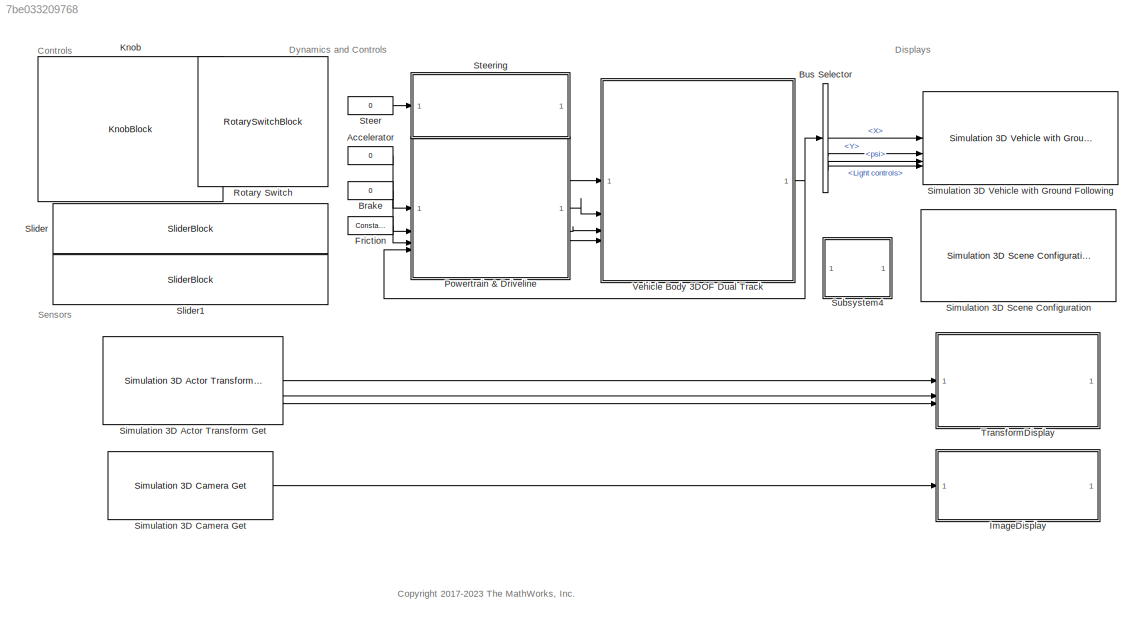
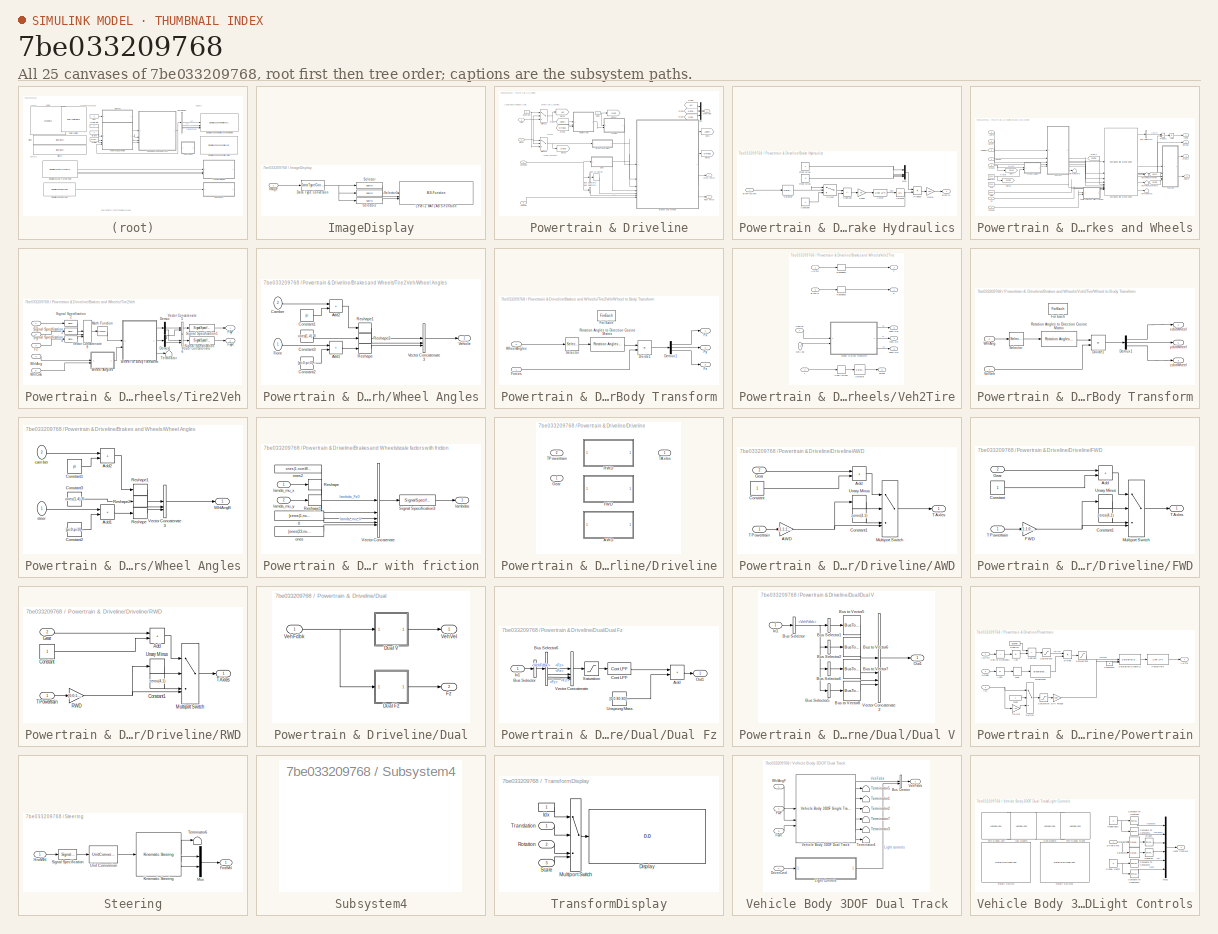
[diagram: thumbnail index - all 25 canvases of the model, root first then tree order]
MODEL slx_7be033209768
KIND model
CONFIG AbsTol = auto
CONFIG EnableMultiTasking = off
CONFIG FixedStep = auto
CONFIG MaxStep = auto
CONFIG MinStep = auto
CONFIG RelTol = 2e-1
CONFIG SampleTimeConstraint = Unconstrained
CONFIG SolverName = ode23tb
CONFIG StartTime = 0.0
CONFIG StopTime = 60
WORKSPACE source: mxarray member
WORKSPACE EngPwr = 352122.842504
WORKSPACE EngWc = 4.047
WORKSPACE Tdiff = 849
WORKSPACE Tlim = 1000
WORKSPACE VEH: object (value not decoded)
BLOCK [Constant] Accelerator
  SampleTime = -1
  Value = 0
BLOCK [Constant] Brake
  SampleTime = -1
  Value = 0
BLOCK [BusSelector] Bus Selector
  OutputSignals = VehFdbk.InertFrm.Cg.Disp.X,VehFdbk.InertFrm.Cg.Disp.Y,VehFdbk.InertFrm.Cg.Ang.psi,Light controls
BLOCK [Reference] Friction  REF=vehdynlibtirecommon/Constant
  SourceBlock = vehdynlibtirecommon/Constant
BLOCK [SubSystem] ImageDisplay
BLOCK [DataTypeConversion] ImageDisplay/Data Type Conversion
  RndMeth = Floor
  SaturateOnIntegerOverflow = off
BLOCK [Inport] ImageDisplay/Image
BLOCK [M-S-Function] ImageDisplay/Level-2 MATLAB S-Function
  FunctionName = VideoDisplayMSfcnWin
  Parameters = 1
BLOCK [Selector] ImageDisplay/Selector
  IndexOptions = Select all,Select all,Index vector (dialog)
  Indices = [1 3],1,1
  InputPortWidth = 3
  NumberOfDimensions = 3
  OutputSizes = 1,1,1
BLOCK [Selector] ImageDisplay/Selector1
  IndexOptions = Select all,Select all,Index vector (dialog)
  Indices = [1 3],1,2
  InputPortWidth = 3
  NumberOfDimensions = 3
  OutputSizes = 1,1,1
BLOCK [Selector] ImageDisplay/Selector2
  IndexOptions = Select all,Select all,Index vector (dialog)
  Indices = [1 3],1,3
  InputPortWidth = 3
  NumberOfDimensions = 3
  OutputSizes = 1,1,1
BLOCK [KnobBlock] Knob
  LabelPosition = Bottom
  ScaleMax = 90
  ScaleMin = -90
  TickInterval = 30
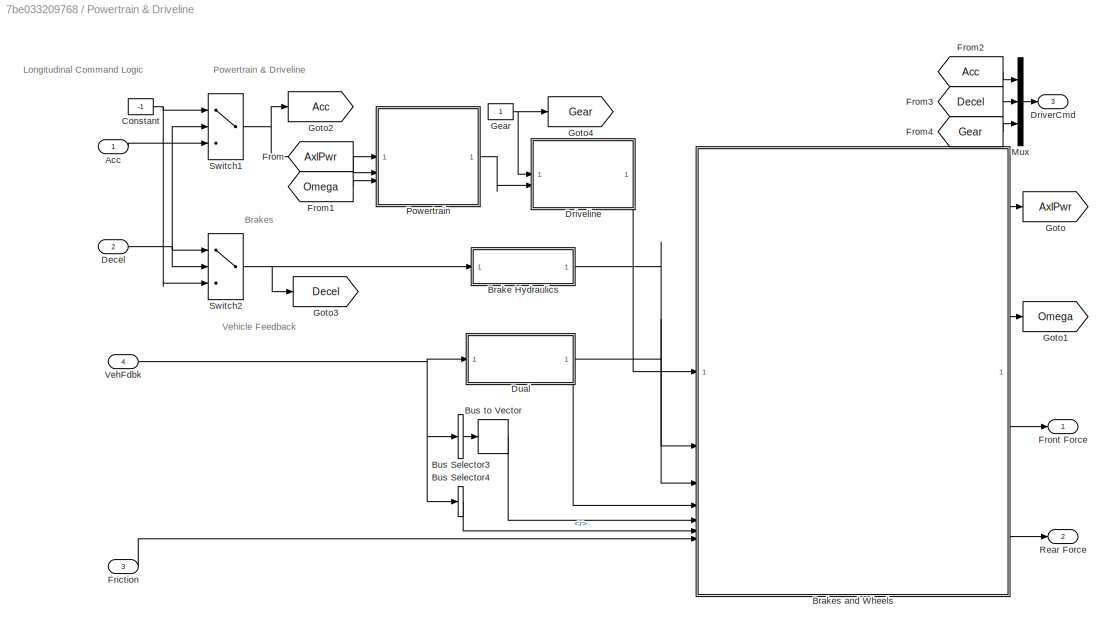
BLOCK [SubSystem] Powertrain & Driveline
BLOCK [Inport] Powertrain & Driveline/Acc
BLOCK [SubSystem] Powertrain & Driveline/Brake Hydraulics
BLOCK [Outport] Powertrain & Driveline/Brake Hydraulics/BrkPrs
  VectorParamsAs1DForOutWhenUnconnected = off
BLOCK [Inport] Powertrain & Driveline/Brake Hydraulics/BrkPrsCmd
BLOCK [Switch] Powertrain & Driveline/Brake Hydraulics/Circuit
  Criteria = u2 ~= 0
  InputSameDT = off
  SaturateOnIntegerOverflow = off
BLOCK [Constant] Powertrain & Driveline/Brake Hydraulics/Constant
  Value = -1
BLOCK [Constant] Powertrain & Driveline/Brake Hydraulics/Front Bias
  NameLocation = top
BLOCK [Gain] Powertrain & Driveline/Brake Hydraulics/Gain4
  Gain = 2e7
BLOCK [Mux] Powertrain & Driveline/Brake Hydraulics/Mux
  DisplayOption = bar
BLOCK [Product] Powertrain & Driveline/Brake Hydraulics/Product
BLOCK [Constant] Powertrain & Driveline/Brake Hydraulics/Rear Bias
  Value = .6
BLOCK [Selector] Powertrain & Driveline/Brake Hydraulics/Selector
  IndexOptions = Index vector (dialog)
  Indices = [1 1 1 1]
  InputPortWidth = 1
  OutputSizes = 1
BLOCK [Gain] Powertrain & Driveline/Brake Hydraulics/Spool
  Gain = 50
BLOCK [Sum] Powertrain & Driveline/Brake Hydraulics/Subtract
  IconShape = rectangular
  Inputs = +-
BLOCK [Reference] Powertrain & Driveline/Brake Hydraulics/Valve  REF=autolibutils/Cont LPF
  SourceBlock = autolibutils/Cont LPF
BLOCK [Integrator] Powertrain & Driveline/Brake Hydraulics/Volume
  LimitOutput = on
  LowerSaturationLimit = 0
  UpperSaturationLimit = 1
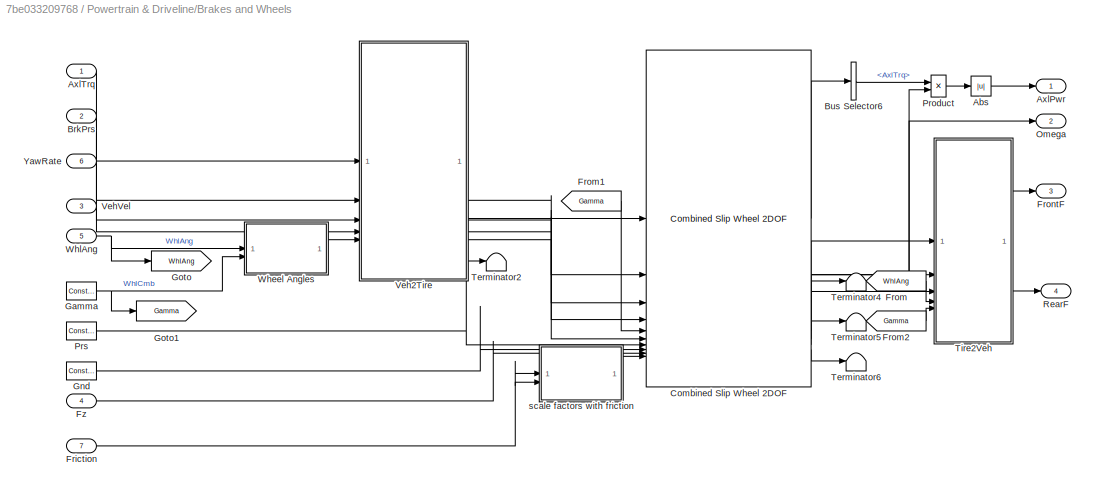
BLOCK [SubSystem] Powertrain & Driveline/Brakes and Wheels
  TreatAsAtomicUnit = on
BLOCK [Abs] Powertrain & Driveline/Brakes and Wheels/Abs
  SaturateOnIntegerOverflow = off
BLOCK [Outport] Powertrain & Driveline/Brakes and Wheels/AxlPwr
BLOCK [Inport] Powertrain & Driveline/Brakes and Wheels/AxlTrq
BLOCK [Inport] Powertrain & Driveline/Brakes and Wheels/BrkPrs
  Port = 2
BLOCK [BusSelector] Powertrain & Driveline/Brakes and Wheels/Bus Selector6
  OutputSignals = AxlTrq
BLOCK [Reference] Powertrain & Driveline/Brakes and Wheels/Combined Slip Wheel 2DOF  REF=vehdynlibtire/Combined Slip Wheel 2DOF
  SourceBlock = vehdynlibtire/Combined Slip Wheel 2DOF
  SourceType = Combined Slip Wheel 2DOF
BLOCK [Inport] Powertrain & Driveline/Brakes and Wheels/Friction
  Port = 7
BLOCK [From] Powertrain & Driveline/Brakes and Wheels/From
  GotoTag = WhlAng
BLOCK [From] Powertrain & Driveline/Brakes and Wheels/From1
  GotoTag = Gamma
BLOCK [From] Powertrain & Driveline/Brakes and Wheels/From2
  GotoTag = Gamma
BLOCK [Outport] Powertrain & Driveline/Brakes and Wheels/FrontF
  Port = 3
BLOCK [Inport] Powertrain & Driveline/Brakes and Wheels/Fz
  Port = 4
  PortDimensions = 4
BLOCK [Reference] Powertrain & Driveline/Brakes and Wheels/Gamma  REF=vehdynlibtirecommon/Constant
  SourceBlock = vehdynlibtirecommon/Constant
BLOCK [Reference] Powertrain & Driveline/Brakes and Wheels/Gnd  REF=vehdynlibtirecommon/Constant
  SourceBlock = vehdynlibtirecommon/Constant
BLOCK [Goto] Powertrain & Driveline/Brakes and Wheels/Goto
  GotoTag = WhlAng
BLOCK [Goto] Powertrain & Driveline/Brakes and Wheels/Goto1
  GotoTag = Gamma
BLOCK [Outport] Powertrain & Driveline/Brakes and Wheels/Omega
  Port = 2
BLOCK [Product] Powertrain & Driveline/Brakes and Wheels/Product
BLOCK [Reference] Powertrain & Driveline/Brakes and Wheels/Prs  REF=vehdynlibtirecommon/Constant
  SourceBlock = vehdynlibtirecommon/Constant
BLOCK [Outport] Powertrain & Driveline/Brakes and Wheels/RearF
  Port = 4
BLOCK [Terminator] Powertrain & Driveline/Brakes and Wheels/Terminator2
BLOCK [Terminator] Powertrain & Driveline/Brakes and Wheels/Terminator4
BLOCK [Terminator] Powertrain & Driveline/Brakes and Wheels/Terminator5
BLOCK [Terminator] Powertrain & Driveline/Brakes and Wheels/Terminator6
BLOCK [SubSystem] Powertrain & Driveline/Brakes and Wheels/Tire2Veh
BLOCK [Demux] Powertrain & Driveline/Brakes and Wheels/Tire2Veh/Demux
  Outputs = [2,2]
BLOCK [Demux] Powertrain & Driveline/Brakes and Wheels/Tire2Veh/Demux1
  Outputs = [2,2]
BLOCK [Inport] Powertrain & Driveline/Brakes and Wheels/Tire2Veh/Fx
BLOCK [Outport] Powertrain & Driveline/Brakes and Wheels/Tire2Veh/FxyF
BLOCK [Outport] Powertrain & Driveline/Brakes and Wheels/Tire2Veh/FxyR
  Port = 2
BLOCK [Inport] Powertrain & Driveline/Brakes and Wheels/Tire2Veh/Fy
  Port = 2
BLOCK [Inport] Powertrain & Driveline/Brakes and Wheels/Tire2Veh/Fz
  Port = 3
BLOCK [Math] Powertrain & Driveline/Brakes and Wheels/Tire2Veh/Math Function
  Operator = transpose
  SignedPower = on
BLOCK [SignalSpecification] Powertrain & Driveline/Brakes and Wheels/Tire2Veh/Signal Specification
  Unit = N
BLOCK [SignalSpecification] Powertrain & Driveline/Brakes and Wheels/Tire2Veh/Signal Specification1
  Unit = N
BLOCK [SignalSpecification] Powertrain & Driveline/Brakes and Wheels/Tire2Veh/Signal Specification2
  Dimensions = 4
BLOCK [SignalSpecification] Powertrain & Driveline/Brakes and Wheels/Tire2Veh/Signal Specification3
  Dimensions = 4
BLOCK [SignalSpecification] Powertrain & Driveline/Brakes and Wheels/Tire2Veh/Signal Specification4
  Dimensions = 4
BLOCK [Terminator] Powertrain & Driveline/Brakes and Wheels/Tire2Veh/Terminator
BLOCK [Concatenate] Powertrain & Driveline/Brakes and Wheels/Tire2Veh/Vector Concatenate5
  ConcatenateDimension = 2
  Mode = Multidimensional array
BLOCK [Concatenate] Powertrain & Driveline/Brakes and Wheels/Tire2Veh/Vector Concatenate6
  ConcatenateDimension = 2
  Mode = Multidimensional array
BLOCK [Concatenate] Powertrain & Driveline/Brakes and Wheels/Tire2Veh/Vector Concatenate8
  ConcatenateDimension = 2
  Mode = Multidimensional array
  NumInputs = 3
BLOCK [SubSystem] Powertrain & Driveline/Brakes and Wheels/Tire2Veh/Wheel Angles
BLOCK [Sum] Powertrain & Driveline/Brakes and Wheels/Tire2Veh/Wheel Angles/Add1
  IconShape = rectangular
BLOCK [Sum] Powertrain & Driveline/Brakes and Wheels/Tire2Veh/Wheel Angles/Add2
  IconShape = rectangular
BLOCK [Inport] Powertrain & Driveline/Brakes and Wheels/Tire2Veh/Wheel Angles/Camber
  NameLocation = top
  Port = 2
BLOCK [Constant] Powertrain & Driveline/Brakes and Wheels/Tire2Veh/Wheel Angles/Constant1
  Value = pi
BLOCK [Constant] Powertrain & Driveline/Brakes and Wheels/Tire2Veh/Wheel Angles/Constant2
  Value = [pi;0;pi;0].*0+[0;pi;0;pi].*.0
BLOCK [Constant] Powertrain & Driveline/Brakes and Wheels/Tire2Veh/Wheel Angles/Constant3
  Value = ones(1,4).*0
BLOCK [Inport] Powertrain & Driveline/Brakes and Wheels/Tire2Veh/Wheel Angles/Front
  NameLocation = top
BLOCK [Reshape] Powertrain & Driveline/Brakes and Wheels/Tire2Veh/Wheel Angles/Reshape
  OutputDimensionality = Row vector (2-D)
BLOCK [Reshape] Powertrain & Driveline/Brakes and Wheels/Tire2Veh/Wheel Angles/Reshape1
  OutputDimensionality = Row vector (2-D)
BLOCK [Reshape] Powertrain & Driveline/Brakes and Wheels/Tire2Veh/Wheel Angles/Reshape2
  OutputDimensionality = Row vector (2-D)
BLOCK [Concatenate] Powertrain & Driveline/Brakes and Wheels/Tire2Veh/Wheel Angles/Vector Concatenate3
  Mode = Multidimensional array
  NumInputs = 3
BLOCK [Outport] Powertrain & Driveline/Brakes and Wheels/Tire2Veh/Wheel Angles/Vehicle
  VectorParamsAs1DForOutWhenUnconnected = off
BLOCK [SubSystem] Powertrain & Driveline/Brakes and Wheels/Tire2Veh/Wheel to Body Transform
BLOCK [Demux] Powertrain & Driveline/Brakes and Wheels/Tire2Veh/Wheel to Body Transform/Demux1
  Outputs = 3
BLOCK [Product] Powertrain & Driveline/Brakes and Wheels/Tire2Veh/Wheel to Body Transform/Divide1
  Inputs = **
  Multiplication = Matrix(*)
BLOCK [ForEach] Powertrain & Driveline/Brakes and Wheels/Tire2Veh/Wheel to Body Transform/For Each
  DisableCoverage = on
BLOCK [Inport] Powertrain & Driveline/Brakes and Wheels/Tire2Veh/Wheel to Body Transform/Forces
  Partition = on
  PartitionDimension = 2
  PartitionOffset = 0
  PartitionWidth = 1
  PortDimensions = [3,1]
BLOCK [Outport] Powertrain & Driveline/Brakes and Wheels/Tire2Veh/Wheel to Body Transform/Fx
  ConcatenationDimension = 1
  VectorParamsAs1DForOutWhenUnconnected = off
BLOCK [Outport] Powertrain & Driveline/Brakes and Wheels/Tire2Veh/Wheel to Body Transform/Fy
  ConcatenationDimension = 1
  Port = 2
  VectorParamsAs1DForOutWhenUnconnected = off
BLOCK [Outport] Powertrain & Driveline/Brakes and Wheels/Tire2Veh/Wheel to Body Transform/Fz
  ConcatenationDimension = 1
  Port = 3
  VectorParamsAs1DForOutWhenUnconnected = off
BLOCK [Reference] Powertrain & Driveline/Brakes and Wheels/Tire2Veh/Wheel to Body Transform/Rotation Angles to Direction Cosine Matrix  REF=sharedtransform/Rotation Angles to
Direction Cosine Matrix
  AttributesFormatString = Rotation Order: %<rotationOrder>
  SourceBlock = sharedtransform/Rotation Angles to\nDirection Cosine Matrix
  SourceType = Ang2DCM
BLOCK [Selector] Powertrain & Driveline/Brakes and Wheels/Tire2Veh/Wheel to Body Transform/Selector
  IndexOptions = Index vector (dialog)
  Indices = [3 2 1]
  InputPortWidth = 3
  OutputSizes = 1
BLOCK [Inport] Powertrain & Driveline/Brakes and Wheels/Tire2Veh/Wheel to Body Transform/WheelAngles
  Partition = on
  PartitionDimension = 2
  PartitionOffset = 0
  PartitionWidth = 1
  Port = 2
BLOCK [Inport] Powertrain & Driveline/Brakes and Wheels/Tire2Veh/WhlAng
  Port = 4
BLOCK [Inport] Powertrain & Driveline/Brakes and Wheels/Tire2Veh/WhlCmb
  Port = 5
BLOCK [SubSystem] Powertrain & Driveline/Brakes and Wheels/Veh2Tire
BLOCK [Inport] Powertrain & Driveline/Brakes and Wheels/Veh2Tire/AxlTrq
BLOCK [Inport] Powertrain & Driveline/Brakes and Wheels/Veh2Tire/BrkPrs
  Port = 2
BLOCK [Outport] Powertrain & Driveline/Brakes and Wheels/Veh2Tire/P
  VectorParamsAs1DForOutWhenUnconnected = off
BLOCK [Reshape] Powertrain & Driveline/Brakes and Wheels/Veh2Tire/Reshape3
BLOCK [Reshape] Powertrain & Driveline/Brakes and Wheels/Veh2Tire/Reshape4
BLOCK [Selector] Powertrain & Driveline/Brakes and Wheels/Veh2Tire/Selector
  IndexOptions = Index vector (dialog)
  Indices = [1 1 1 1]
  InputPortWidth = 1
  OutputSizes = 1
BLOCK [Outport] Powertrain & Driveline/Brakes and Wheels/Veh2Tire/T
  Port = 2
  VectorParamsAs1DForOutWhenUnconnected = off
BLOCK [UnaryMinus] Powertrain & Driveline/Brakes and Wheels/Veh2Tire/Unary Minus
BLOCK [Inport] Powertrain & Driveline/Brakes and Wheels/Veh2Tire/VehVel
  Port = 4
BLOCK [SubSystem] Powertrain & Driveline/Brakes and Wheels/Veh2Tire/Wheel to Body Transform
BLOCK [Demux] Powertrain & Driveline/Brakes and Wheels/Veh2Tire/Wheel to Body Transform/Demux1
  Outputs = 3
BLOCK [Product] Powertrain & Driveline/Brakes and Wheels/Veh2Tire/Wheel to Body Transform/Divide1
  Inputs = **
  Multiplication = Matrix(*)
BLOCK [ForEach] Powertrain & Driveline/Brakes and Wheels/Veh2Tire/Wheel to Body Transform/For Each
  DisableCoverage = on
BLOCK [Reference] Powertrain & Driveline/Brakes and Wheels/Veh2Tire/Wheel to Body Transform/Rotation Angles to Direction Cosine Matrix  REF=sharedtransform/Rotation Angles to
Direction Cosine Matrix
  AttributesFormatString = Rotation Order: %<rotationOrder>
  SourceBlock = sharedtransform/Rotation Angles to\nDirection Cosine Matrix
  SourceType = Ang2DCM
BLOCK [Selector] Powertrain & Driveline/Brakes and Wheels/Veh2Tire/Wheel to Body Transform/Selector
  IndexOptions = Index vector (dialog)
  Indices = [3 2 1]
  InputPortWidth = 3
  OutputSizes = 1
BLOCK [Inport] Powertrain & Driveline/Brakes and Wheels/Veh2Tire/Wheel to Body Transform/VelVeh
  Partition = on
  PartitionDimension = 2
  PartitionOffset = 0
  PartitionWidth = 1
BLOCK [Inport] Powertrain & Driveline/Brakes and Wheels/Veh2Tire/Wheel to Body Transform/WhlAng
  Partition = on
  PartitionDimension = 2
  PartitionOffset = 0
  PartitionWidth = 1
  Port = 2
BLOCK [Outport] Powertrain & Driveline/Brakes and Wheels/Veh2Tire/Wheel to Body Transform/xdotWheel
  ConcatenationDimension = 1
  VectorParamsAs1DForOutWhenUnconnected = off
BLOCK [Outport] Powertrain & Driveline/Brakes and Wheels/Veh2Tire/Wheel to Body Transform/ydotWheel
  ConcatenationDimension = 1
  Port = 2
  VectorParamsAs1DForOutWhenUnconnected = off
BLOCK [Outport] Powertrain & Driveline/Brakes and Wheels/Veh2Tire/Wheel to Body Transform/zdotWheel
  ConcatenationDimension = 1
  Port = 3
  VectorParamsAs1DForOutWhenUnconnected = off
BLOCK [Inport] Powertrain & Driveline/Brakes and Wheels/Veh2Tire/WhlAng
  Port = 5
BLOCK [Outport] Powertrain & Driveline/Brakes and Wheels/Veh2Tire/psidot
  Port = 5
  VectorParamsAs1DForOutWhenUnconnected = off
BLOCK [Inport] Powertrain & Driveline/Brakes and Wheels/Veh2Tire/r
  Port = 3
BLOCK [Outport] Powertrain & Driveline/Brakes and Wheels/Veh2Tire/xdotAxle
  Port = 3
  VectorParamsAs1DForOutWhenUnconnected = off
BLOCK [Outport] Powertrain & Driveline/Brakes and Wheels/Veh2Tire/ydotAxle
  Port = 4
  VectorParamsAs1DForOutWhenUnconnected = off
BLOCK [Outport] Powertrain & Driveline/Brakes and Wheels/Veh2Tire/zdotAxle
  Port = 6
  VectorParamsAs1DForOutWhenUnconnected = off
BLOCK [Inport] Powertrain & Driveline/Brakes and Wheels/VehVel
  Port = 3
BLOCK [SubSystem] Powertrain & Driveline/Brakes and Wheels/Wheel Angles
BLOCK [Sum] Powertrain & Driveline/Brakes and Wheels/Wheel Angles/Add1
  IconShape = rectangular
BLOCK [Sum] Powertrain & Driveline/Brakes and Wheels/Wheel Angles/Add2
  IconShape = rectangular
BLOCK [Constant] Powertrain & Driveline/Brakes and Wheels/Wheel Angles/Constant1
  Value = pi
BLOCK [Constant] Powertrain & Driveline/Brakes and Wheels/Wheel Angles/Constant2
  Value = [pi;0;pi;0].*0+[0;pi;0;pi].*0
BLOCK [Constant] Powertrain & Driveline/Brakes and Wheels/Wheel Angles/Constant3
  Value = ones(1,4).*0
BLOCK [Reshape] Powertrain & Driveline/Brakes and Wheels/Wheel Angles/Reshape
  OutputDimensionality = Row vector (2-D)
BLOCK [Reshape] Powertrain & Driveline/Brakes and Wheels/Wheel Angles/Reshape1
  OutputDimensionality = Row vector (2-D)
BLOCK [Reshape] Powertrain & Driveline/Brakes and Wheels/Wheel Angles/Reshape2
  OutputDimensionality = Row vector (2-D)
BLOCK [Concatenate] Powertrain & Driveline/Brakes and Wheels/Wheel Angles/Vector Concatenate3
  Mode = Multidimensional array
  NumInputs = 3
BLOCK [Outport] Powertrain & Driveline/Brakes and Wheels/Wheel Angles/WhlAngB
  VectorParamsAs1DForOutWhenUnconnected = off
BLOCK [Inport] Powertrain & Driveline/Brakes and Wheels/Wheel Angles/camber
  NameLocation = top
  Port = 2
BLOCK [Inport] Powertrain & Driveline/Brakes and Wheels/Wheel Angles/steer
  NameLocation = top
BLOCK [Inport] Powertrain & Driveline/Brakes and Wheels/WhlAng
  Port = 5
BLOCK [Inport] Powertrain & Driveline/Brakes and Wheels/YawRate
  Port = 6
BLOCK [SubSystem] Powertrain & Driveline/Brakes and Wheels/scale factors with friction
BLOCK [Constant] Powertrain & Driveline/Brakes and Wheels/scale factors with friction/0
  Value = [zeros(1,numWheels)]
  VectorParams1D = off
BLOCK [Reshape] Powertrain & Driveline/Brakes and Wheels/scale factors with friction/Reshape
  OutputDimensionality = Row vector (2-D)
  OutputDimensions = [1,numWheels]
BLOCK [Reshape] Powertrain & Driveline/Brakes and Wheels/scale factors with friction/Reshape1
  OutputDimensionality = Row vector (2-D)
  OutputDimensions = [1,numWheels]
BLOCK [SignalSpecification] Powertrain & Driveline/Brakes and Wheels/scale factors with friction/Signal Specification3
  Unit = 1
BLOCK [Concatenate] Powertrain & Driveline/Brakes and Wheels/scale factors with friction/Vector Concatenate
  Mode = Multidimensional array
  NumInputs = 5
BLOCK [Outport] Powertrain & Driveline/Brakes and Wheels/scale factors with friction/lambdas
  Unit = 1
  VectorParamsAs1DForOutWhenUnconnected = off
BLOCK [Inport] Powertrain & Driveline/Brakes and Wheels/scale factors with friction/lamda_mu_x
BLOCK [Inport] Powertrain & Driveline/Brakes and Wheels/scale factors with friction/lamda_mu_y
  Port = 2
BLOCK [Constant] Powertrain & Driveline/Brakes and Wheels/scale factors with friction/ones
  Value = [ones(23,numWheels)]
  VectorParams1D = off
BLOCK [Constant] Powertrain & Driveline/Brakes and Wheels/scale factors with friction/ones2
  Value = ones(1,numWheels)
  VectorParams1D = off
BLOCK [BusSelector] Powertrain & Driveline/Bus Selector3
  OutputAsBus = on
  OutputSignals = VehFdbk.BdyFrm.FrntAxl.Steer.WhlAngFL,VehFdbk.BdyFrm.FrntAxl.Steer.WhlAngFR,VehFdbk.BdyFrm.RearAxl.Steer.WhlAngRL,VehFdbk.BdyFrm.RearAxl.Steer.WhlAngRR
BLOCK [BusSelector] Powertrain & Driveline/Bus Selector4
  OutputSignals = VehFdbk.BdyFrm.Cg.AngVel.r
BLOCK [BusToVector] Powertrain & Driveline/Bus to Vector
BLOCK [Constant] Powertrain & Driveline/Constant
  NameLocation = top
  Value = -1
BLOCK [Inport] Powertrain & Driveline/Decel
  Port = 2
BLOCK [SubSystem] Powertrain & Driveline/Driveline
  LabelModeActiveChoice = 0
  Variant = on
  VariantControl = Variant1
  VariantControlMode = label
BLOCK [SubSystem] Powertrain & Driveline/Driveline/AWD
  VariantControl = 2
BLOCK [Gain] Powertrain & Driveline/Driveline/AWD/AWD
  Gain = [1;1;1;1]./2
BLOCK [Sum] Powertrain & Driveline/Driveline/AWD/Add
  IconShape = rectangular
BLOCK [Constant] Powertrain & Driveline/Driveline/AWD/Constant
BLOCK [Constant] Powertrain & Driveline/Driveline/AWD/Constant1
  Value = zeros(4,1)
BLOCK [Inport] Powertrain & Driveline/Driveline/AWD/Gear
  Port = 2
BLOCK [MultiPortSwitch] Powertrain & Driveline/Driveline/AWD/Multiport Switch
  DataPortOrder = Zero-based contiguous
  InputSameDT = off
  SaturateOnIntegerOverflow = off
  zeroidx = on
BLOCK [Outport] Powertrain & Driveline/Driveline/AWD/TAxles
  VectorParamsAs1DForOutWhenUnconnected = off
BLOCK [Inport] Powertrain & Driveline/Driveline/AWD/TPowertrain
BLOCK [UnaryMinus] Powertrain & Driveline/Driveline/AWD/Unary Minus
BLOCK [SubSystem] Powertrain & Driveline/Driveline/FWD
  VariantControl = 1
BLOCK [Sum] Powertrain & Driveline/Driveline/FWD/Add
  IconShape = rectangular
BLOCK [Constant] Powertrain & Driveline/Driveline/FWD/Constant
BLOCK [Constant] Powertrain & Driveline/Driveline/FWD/Constant1
  Value = zeros(4,1)
BLOCK [Gain] Powertrain & Driveline/Driveline/FWD/FWD
  Gain = [1;1;0;0]
BLOCK [Inport] Powertrain & Driveline/Driveline/FWD/Gear
  Port = 2
BLOCK [MultiPortSwitch] Powertrain & Driveline/Driveline/FWD/Multiport Switch
  DataPortOrder = Zero-based contiguous
  InputSameDT = off
  SaturateOnIntegerOverflow = off
  zeroidx = on
BLOCK [Outport] Powertrain & Driveline/Driveline/FWD/TAxles
  VectorParamsAs1DForOutWhenUnconnected = off
BLOCK [Inport] Powertrain & Driveline/Driveline/FWD/TPowertrain
BLOCK [UnaryMinus] Powertrain & Driveline/Driveline/FWD/Unary Minus
BLOCK [Inport] Powertrain & Driveline/Driveline/Gear
BLOCK [SubSystem] Powertrain & Driveline/Driveline/RWD
  VariantControl = 0
BLOCK [Sum] Powertrain & Driveline/Driveline/RWD/Add
  IconShape = rectangular
BLOCK [Constant] Powertrain & Driveline/Driveline/RWD/Constant
BLOCK [Constant] Powertrain & Driveline/Driveline/RWD/Constant1
  Value = zeros(4,1)
BLOCK [Inport] Powertrain & Driveline/Driveline/RWD/Gear
  Port = 2
BLOCK [MultiPortSwitch] Powertrain & Driveline/Driveline/RWD/Multiport Switch
  DataPortOrder = Zero-based contiguous
  InputSameDT = off
  SaturateOnIntegerOverflow = off
  zeroidx = on
BLOCK [Gain] Powertrain & Driveline/Driveline/RWD/RWD
  Gain = [0;0;1;1]
BLOCK [Outport] Powertrain & Driveline/Driveline/RWD/TAxles
  VectorParamsAs1DForOutWhenUnconnected = off
BLOCK [Inport] Powertrain & Driveline/Driveline/RWD/TPowertrain
BLOCK [UnaryMinus] Powertrain & Driveline/Driveline/RWD/Unary Minus
BLOCK [Outport] Powertrain & Driveline/Driveline/TAxles
  PortDimensions = 4
  VectorParamsAs1DForOutWhenUnconnected = off
BLOCK [Inport] Powertrain & Driveline/Driveline/TPowertrain
  Port = 2
  PortDimensions = 1
BLOCK [Outport] Powertrain & Driveline/DriverCmd
  Port = 3
  VectorParamsAs1DForOutWhenUnconnected = off
BLOCK [SubSystem] Powertrain & Driveline/Dual
  VariantControl = 1
BLOCK [SubSystem] Powertrain & Driveline/Dual/Dual Fz
BLOCK [Sum] Powertrain & Driveline/Dual/Dual Fz/Add
  IconShape = rectangular
BLOCK [BusSelector] Powertrain & Driveline/Dual/Dual Fz/Bus Selector
  OutputSignals = VehFdbk
BLOCK [BusSelector] Powertrain & Driveline/Dual/Dual Fz/Bus Selector6
  OutputSignals = BdyFrm.Forces.Tires.FrntTires.Lft.Fz,BdyFrm.Forces.Tires.FrntTires.Rght.Fz,BdyFrm.Forces.Tires.RearTires.Lft.Fz,BdyFrm.Forces.Tires.RearTires.Rght.Fz
BLOCK [Reference] Powertrain & Driveline/Dual/Dual Fz/Cont LPF  REF=autolibutils/Cont LPF
  SourceBlock = autolibutils/Cont LPF
BLOCK [Inport] Powertrain & Driveline/Dual/Dual Fz/In1
BLOCK [Outport] Powertrain & Driveline/Dual/Dual Fz/Out1
  VectorParamsAs1DForOutWhenUnconnected = off
BLOCK [Saturate] Powertrain & Driveline/Dual/Dual Fz/Saturation
  LowerLimit = 100
  UpperLimit = 10e3
  ZeroCross = off
BLOCK [Constant] Powertrain & Driveline/Dual/Dual Fz/Unsprung Mass
  Value = [0 0 80 80].*9.81
BLOCK [Concatenate] Powertrain & Driveline/Dual/Dual Fz/Vector Concatenate
  NumInputs = 4
BLOCK [SubSystem] Powertrain & Driveline/Dual/Dual V
BLOCK [BusSelector] Powertrain & Driveline/Dual/Dual V/Bus Selector
  OutputSignals = VehFdbk
BLOCK [BusSelector] Powertrain & Driveline/Dual/Dual V/Bus Selector1
  OutputAsBus = on
  OutputSignals = BdyFrm.FrntAxl.Lft.Vel.xdot,BdyFrm.FrntAxl.Lft.Vel.ydot,BdyFrm.FrntAxl.Lft.Vel.zdot
BLOCK [BusSelector] Powertrain & Driveline/Dual/Dual V/Bus Selector2
  OutputAsBus = on
  OutputSignals = BdyFrm.FrntAxl.Rght.Vel.xdot,BdyFrm.FrntAxl.Rght.Vel.ydot,BdyFrm.FrntAxl.Rght.Vel.zdot
BLOCK [BusSelector] Powertrain & Driveline/Dual/Dual V/Bus Selector4
  OutputAsBus = on
  OutputSignals = BdyFrm.RearAxl.Lft.Vel.xdot,BdyFrm.RearAxl.Lft.Vel.ydot,BdyFrm.RearAxl.Lft.Vel.zdot
BLOCK [BusSelector] Powertrain & Driveline/Dual/Dual V/Bus Selector5
  OutputAsBus = on
  OutputSignals = BdyFrm.RearAxl.Rght.Vel.xdot,BdyFrm.RearAxl.Rght.Vel.ydot,BdyFrm.RearAxl.Rght.Vel.zdot
BLOCK [BusToVector] Powertrain & Driveline/Dual/Dual V/Bus to Vector5
BLOCK [BusToVector] Powertrain & Driveline/Dual/Dual V/Bus to Vector6
BLOCK [BusToVector] Powertrain & Driveline/Dual/Dual V/Bus to Vector7
BLOCK [BusToVector] Powertrain & Driveline/Dual/Dual V/Bus to Vector8
BLOCK [Inport] Powertrain & Driveline/Dual/Dual V/In1
BLOCK [Outport] Powertrain & Driveline/Dual/Dual V/Out1
  VectorParamsAs1DForOutWhenUnconnected = off
BLOCK [Concatenate] Powertrain & Driveline/Dual/Dual V/Vector Concatenate2
  ConcatenateDimension = 2
  Mode = Multidimensional array
  NumInputs = 4
BLOCK [Outport] Powertrain & Driveline/Dual/Fz
  Port = 2
  VectorParamsAs1DForOutWhenUnconnected = off
BLOCK [Inport] Powertrain & Driveline/Dual/VehFdbk
BLOCK [Outport] Powertrain & Driveline/Dual/VehVel
  VectorParamsAs1DForOutWhenUnconnected = off
BLOCK [Inport] Powertrain & Driveline/Friction
  Port = 3
BLOCK [From] Powertrain & Driveline/From
  GotoTag = AxlPwr
BLOCK [From] Powertrain & Driveline/From1
  GotoTag = Omega
BLOCK [From] Powertrain & Driveline/From2
  GotoTag = Acc
BLOCK [From] Powertrain & Driveline/From3
  GotoTag = Decel
BLOCK [From] Powertrain & Driveline/From4
  GotoTag = Gear
BLOCK [Outport] Powertrain & Driveline/Front Force
  VectorParamsAs1DForOutWhenUnconnected = off
BLOCK [Constant] Powertrain & Driveline/Gear
BLOCK [Goto] Powertrain & Driveline/Goto
  GotoTag = AxlPwr
BLOCK [Goto] Powertrain & Driveline/Goto1
  GotoTag = Omega
BLOCK [Goto] Powertrain & Driveline/Goto2
  GotoTag = Acc
BLOCK [Goto] Powertrain & Driveline/Goto3
  GotoTag = Decel
BLOCK [Goto] Powertrain & Driveline/Goto4
  GotoTag = Gear
BLOCK [Mux] Powertrain & Driveline/Mux
  DisplayOption = bar
  Inputs = 3
BLOCK [SubSystem] Powertrain & Driveline/Powertrain
BLOCK [Abs] Powertrain & Driveline/Powertrain/Abs
  SaturateOnIntegerOverflow = off
  ZeroCross = off
BLOCK [Abs] Powertrain & Driveline/Powertrain/Abs1
  SaturateOnIntegerOverflow = off
  ZeroCross = off
BLOCK [Inport] Powertrain & Driveline/Powertrain/Acc
BLOCK [Inport] Powertrain & Driveline/Powertrain/AxlPwr
  Port = 2
  PortDimensions = 4
BLOCK [Outport] Powertrain & Driveline/Powertrain/AxlTrq
  VectorParamsAs1DForOutWhenUnconnected = off
BLOCK [Constant] Powertrain & Driveline/Powertrain/Constant3
  NameLocation = top
  Value = 0
BLOCK [Gain] Powertrain & Driveline/Powertrain/Diff Torque
  Gain = Tdiff
BLOCK [Product] Powertrain & Driveline/Powertrain/Divide
  Inputs = */
BLOCK [Constant] Powertrain & Driveline/Powertrain/EngPwr
  NameLocation = top
  Value = EngPwr
BLOCK [Constant] Powertrain & Driveline/Powertrain/Gear
  SampleTime = -1
BLOCK [MinMax] Powertrain & Driveline/Powertrain/Max
  Function = max
  ZeroCross = off
BLOCK [Inport] Powertrain & Driveline/Powertrain/Omega
  Port = 3
  PortDimensions = 4
BLOCK [Reference] Powertrain & Driveline/Powertrain/Powertrain  REF=autolibutils/Cont LPF
  SourceBlock = autolibutils/Cont LPF
BLOCK [Saturate] Powertrain & Driveline/Powertrain/Saturation
  LowerLimit = 0
  UpperLimit = inf
  ZeroCross = off
BLOCK [Reference] Powertrain & Driveline/Powertrain/Saturation Dynamic1  REF=simulink/Discontinuities/Saturation
Dynamic
  SourceBlock = simulink/Discontinuities/Saturation\nDynamic
  SourceType = Saturation Dynamic
BLOCK [Saturate] Powertrain & Driveline/Powertrain/Saturation2
  LowerLimit = 100
  UpperLimit = inf
  ZeroCross = off
BLOCK [Saturate] Powertrain & Driveline/Powertrain/Saturation3
  LowerLimit = 0
  UpperLimit = Tlim
  ZeroCross = off
BLOCK [Sum] Powertrain & Driveline/Powertrain/Subtract
  IconShape = rectangular
  Inputs = +-
BLOCK [Sum] Powertrain & Driveline/Powertrain/Sum of Elements
  IconShape = rectangular
  Inputs = +
BLOCK [Switch] Powertrain & Driveline/Powertrain/Switch
  InputSameDT = off
  SaturateOnIntegerOverflow = off
  ZeroCross = off
BLOCK [Gain] Powertrain & Driveline/Powertrain/Tip Out
  Gain = -10
BLOCK [Reference] Powertrain & Driveline/Powertrain/div0protect  REF=autolibutils/div0protect - poly
  SourceBlock = autolibutils/div0protect - poly
BLOCK [Outport] Powertrain & Driveline/Rear Force
  Port = 2
  VectorParamsAs1DForOutWhenUnconnected = off
BLOCK [Switch] Powertrain & Driveline/Switch1
  Criteria = u2 > Threshold
  InputSameDT = off
  SaturateOnIntegerOverflow = off
BLOCK [Switch] Powertrain & Driveline/Switch2
  Criteria = u2 > Threshold
  InputSameDT = off
  SaturateOnIntegerOverflow = off
BLOCK [Inport] Powertrain & Driveline/VehFdbk
  Port = 4
BLOCK [RotarySwitchBlock] Rotary Switch
  LabelPosition = Bottom
BLOCK [Reference] Simulation 3D Actor Transform Get  REF=sim3dlib/Simulation 3D Actor Transform Get
  LibrarySourceBlock = vehdynlibsim3dcore/Simulation 3D Actor Transform Get
  Priority = 1
  SourceBlock = sim3dlib/Simulation 3D Actor Transform Get
  SourceType = Simulation 3D Actor Transform Get
BLOCK [Reference] Simulation 3D Camera Get  REF=sim3dlib/Simulation 3D Camera Get
  LibrarySourceBlock = vehdynlibsim3dcore/Simulation 3D Camera Get
  Priority = 2
  SourceBlock = sim3dlib/Simulation 3D Camera Get
  SourceType = Simulation 3D Camera Get
BLOCK [Reference] Simulation 3D Scene Configuration  REF=sim3dlib/Simulation 3D Scene Configuration
  LibrarySourceBlock = vehdynlibsim3dcore/Simulation 3D Scene Configuration
  Priority = 0
  SourceBlock = sim3dlib/Simulation 3D Scene Configuration
  SourceType = Simulation 3D Scene Configuration
BLOCK [Reference] Simulation 3D Vehicle with Ground Following  REF=sim3dautolib/Simulation 3D Vehicle with Ground Following VDBS
  LibrarySourceBlock = vehdynlibsim3d/Simulation 3D Vehicle with Ground Following
  Priority = -1
  SourceBlock = sim3dautolib/Simulation 3D Vehicle with Ground Following VDBS
  SourceType = Simulation 3D Vehicle with Ground Following
BLOCK [SliderBlock] Slider
  LabelPosition = Bottom
  ScaleMax = 1
  TickInterval = .2
BLOCK [SliderBlock] Slider1
  LabelPosition = Bottom
  NameLocation = top
  ScaleMax = 1
  TickInterval = .2
BLOCK [Constant] Steer
  SampleTime = -1
  Value = 0
BLOCK [SubSystem] Steering
  NameLocation = top
BLOCK [Outport] Steering/FrntWhl
  VectorParamsAs1DForOutWhenUnconnected = off
BLOCK [Inport] Steering/HndWhl
BLOCK [Reference] Steering/Kinematic Steering  REF=vehdynlibsteering/Kinematic Steering
  SourceBlock = vehdynlibsteering/Kinematic Steering
  SourceType = Kinematic Steering
BLOCK [Mux] Steering/Mux
  DisplayOption = bar
  Inputs = 2
BLOCK [SignalSpecification] Steering/Signal Specification
  Unit = deg
BLOCK [Terminator] Steering/Terminator6
BLOCK [UnitConversion] Steering/Unit Conversion
BLOCK [SubSystem] Subsystem4
  OpenFcn = eval('vdynblkshelp(''vdynblksscenecameraray'')');
BLOCK [SubSystem] TransformDisplay
BLOCK [MultiPortSwitch] TransformDisplay/ Multiport Switch
  InputSameDT = off
  SaturateOnIntegerOverflow = off
BLOCK [Display] TransformDisplay/Display
  Decimation = 1
BLOCK [Constant] TransformDisplay/Idx
BLOCK [Inport] TransformDisplay/Rotation
  Port = 2
BLOCK [Inport] TransformDisplay/Scale
  Port = 3
BLOCK [Inport] TransformDisplay/Translation
BLOCK [SubSystem] Vehicle Body 3DOF Dual Track
BLOCK [BusCreator] Vehicle Body 3DOF Dual Track/Bus Creator
  DisplayOption = bar
  InheritFromInputs = on
  Inputs = 2
BLOCK [Inport] Vehicle Body 3DOF Dual Track/DriverCmd
  Port = 4
BLOCK [Inport] Vehicle Body 3DOF Dual Track/FwF
  Port = 2
BLOCK [Inport] Vehicle Body 3DOF Dual Track/FwR
  Port = 3
BLOCK [SubSystem] Vehicle Body 3DOF Dual Track/Light Controls
BLOCK [Reference] Vehicle Body 3DOF Dual Track/Light Controls/Brake  REF=simulink/Logic and Bit
Operations/Compare
To Constant
  NameLocation = top
  SourceBlock = simulink/Logic and Bit\nOperations/Compare\nTo Constant
  SourceType = Compare To Constant
BLOCK [Reference] Vehicle Body 3DOF Dual Track/Light Controls/Compare To Constant  REF=simulink/Logic and Bit
Operations/Compare
To Constant
  SourceBlock = simulink/Logic and Bit\nOperations/Compare\nTo Constant
  SourceType = Compare To Constant
BLOCK [Reference] Vehicle Body 3DOF Dual Track/Light Controls/Compare To Constant1  REF=simulink/Logic and Bit
Operations/Compare
To Constant
  SourceBlock = simulink/Logic and Bit\nOperations/Compare\nTo Constant
  SourceType = Compare To Constant
BLOCK [Reference] Vehicle Body 3DOF Dual Track/Light Controls/Compare To Constant2  REF=simulink/Logic and Bit
Operations/Compare
To Constant
  SourceBlock = simulink/Logic and Bit\nOperations/Compare\nTo Constant
  SourceType = Compare To Constant
BLOCK [Reference] Vehicle Body 3DOF Dual Track/Light Controls/Compare To Constant3  REF=simulink/Logic and Bit
Operations/Compare
To Constant
  SourceBlock = simulink/Logic and Bit\nOperations/Compare\nTo Constant
  SourceType = Compare To Constant
BLOCK [Inport] Vehicle Body 3DOF Dual Track/Light Controls/DriverCmd
BLOCK [Constant] Vehicle Body 3DOF Dual Track/Light Controls/Headlights
  Value = 0
BLOCK [LampBlock] Vehicle Body 3DOF Dual Track/Light Controls/High Beams
  Icon = HighBeams
BLOCK [Outport] Vehicle Body 3DOF Dual Track/Light Controls/Light Controls
BLOCK [LampBlock] Vehicle Body 3DOF Dual Track/Light Controls/Low Beams
  Icon = LowBeams
BLOCK [Mux] Vehicle Body 3DOF Dual Track/Light Controls/Mux1
  DisplayOption = bar
  Inputs = 6
BLOCK [Reference] Vehicle Body 3DOF Dual Track/Light Controls/Reverse  REF=simulink/Logic and Bit
Operations/Compare
To Constant
  SourceBlock = simulink/Logic and Bit\nOperations/Compare\nTo Constant
  SourceType = Compare To Constant
BLOCK [RotarySwitchBlock] Vehicle Body 3DOF Dual Track/Light Controls/Rotary Switch
  LabelPosition = Bottom
BLOCK [RotarySwitchBlock] Vehicle Body 3DOF Dual Track/Light Controls/Rotary Switch1
  LabelPosition = Bottom
BLOCK [Selector] Vehicle Body 3DOF Dual Track/Light Controls/Selector
  IndexOptions = Index vector (dialog)
  Indices = [2]
  InputPortWidth = 3
  OutputSizes = 1
BLOCK [Selector] Vehicle Body 3DOF Dual Track/Light Controls/Selector1
  IndexOptions = Index vector (dialog)
  Indices = [3]
  InputPortWidth = 3
  OutputSizes = 1
BLOCK [Constant] Vehicle Body 3DOF Dual Track/Light Controls/Signal Lights
  Value = 0
BLOCK [LampBlock] Vehicle Body 3DOF Dual Track/Light Controls/Turn Signal Left
  Icon = TurnSignalLeft
BLOCK [LampBlock] Vehicle Body 3DOF Dual Track/Light Controls/Turn Signal Right
  Icon = TurnSignalRight
BLOCK [Terminator] Vehicle Body 3DOF Dual Track/Terminator1
BLOCK [Terminator] Vehicle Body 3DOF Dual Track/Terminator2
BLOCK [Terminator] Vehicle Body 3DOF Dual Track/Terminator3
BLOCK [Terminator] Vehicle Body 3DOF Dual Track/Terminator4
BLOCK [Terminator] Vehicle Body 3DOF Dual Track/Terminator5
BLOCK [Terminator] Vehicle Body 3DOF Dual Track/Terminator7
BLOCK [Outport] Vehicle Body 3DOF Dual Track/VehFdbk
BLOCK [Reference] Vehicle Body 3DOF Dual Track/Vehicle Body 3DOF Dual Track  REF=autolibshared/Vehicle Body 3DOF Single Track
  LibrarySourceBlock = vehdynlibeom/Vehicle Body 3DOF Single Track
  SourceBlock = autolibshared/Vehicle Body 3DOF Single Track
  SourceType = Vehicle Body 3DOF Lateral
BLOCK [Inport] Vehicle Body 3DOF Dual Track/WhlAngF
ANNOTATION (root): Controls
ANNOTATION (root): <copyright redacted>
ANNOTATION (root): Displays
ANNOTATION (root): Dynamics and Controls
ANNOTATION (root): Sensors
ANNOTATION Powertrain & Driveline: Brakes
ANNOTATION Powertrain & Driveline: Longitudinal Command Logic
ANNOTATION Powertrain & Driveline: Powertrain & Driveline
ANNOTATION Powertrain & Driveline: Vehicle Feedback
LINE Accelerator:1 -> Powertrain & Driveline:1
LINE Brake:1 -> Powertrain & Driveline:2
LINE Bus Selector:1 -> Simulation 3D Vehicle with Ground Following:1
LINE Bus Selector:2 -> Simulation 3D Vehicle with Ground Following:2
LINE Bus Selector:3 -> Simulation 3D Vehicle with Ground Following:3
LINE Bus Selector:4 -> Simulation 3D Vehicle with Ground Following:4
LINE Friction:1 -> Powertrain & Driveline:3
NET ImageDisplay/Data Type Conversion:1 -> ImageDisplay/Selector1:1, ImageDisplay/Selector2:1, ImageDisplay/Selector:1
LINE ImageDisplay/Image:1 -> ImageDisplay/Data Type Conversion:1
LINE ImageDisplay/Selector1:1 -> ImageDisplay/Level-2 MATLAB S-Function:2
LINE ImageDisplay/Selector2:1 -> ImageDisplay/Level-2 MATLAB S-Function:3
LINE ImageDisplay/Selector:1 -> ImageDisplay/Level-2 MATLAB S-Function:1
LINE Powertrain & Driveline/Acc:1 -> Powertrain & Driveline/Switch1:3
LINE Powertrain & Driveline/Brake Hydraulics/BrkPrsCmd:1 -> Powertrain & Driveline/Brake Hydraulics/Selector:1
LINE Powertrain & Driveline/Brake Hydraulics/Circuit:1 -> Powertrain & Driveline/Brake Hydraulics/Subtract:1
LINE Powertrain & Driveline/Brake Hydraulics/Constant:1 -> Powertrain & Driveline/Brake Hydraulics/Circuit:3
NET Powertrain & Driveline/Brake Hydraulics/Front Bias:1 -> Powertrain & Driveline/Brake Hydraulics/Mux:1, Powertrain & Driveline/Brake Hydraulics/Mux:2
LINE Powertrain & Driveline/Brake Hydraulics/Gain4:1 -> Powertrain & Driveline/Brake Hydraulics/BrkPrs:1
LINE Powertrain & Driveline/Brake Hydraulics/Mux:1 -> Powertrain & Driveline/Brake Hydraulics/Product:1
LINE Powertrain & Driveline/Brake Hydraulics/Product:1 -> Powertrain & Driveline/Brake Hydraulics/Gain4:1
NET Powertrain & Driveline/Brake Hydraulics/Rear Bias:1 -> Powertrain & Driveline/Brake Hydraulics/Mux:3, Powertrain & Driveline/Brake Hydraulics/Mux:4
NET Powertrain & Driveline/Brake Hydraulics/Selector:1 -> Powertrain & Driveline/Brake Hydraulics/Circuit:1, Powertrain & Driveline/Brake Hydraulics/Circuit:2
LINE Powertrain & Driveline/Brake Hydraulics/Spool:1 -> Powertrain & Driveline/Brake Hydraulics/Valve:1
LINE Powertrain & Driveline/Brake Hydraulics/Subtract:1 -> Powertrain & Driveline/Brake Hydraulics/Spool:1
LINE Powertrain & Driveline/Brake Hydraulics/Valve:1 -> Powertrain & Driveline/Brake Hydraulics/Volume:1
NET Powertrain & Driveline/Brake Hydraulics/Volume:1 -> Powertrain & Driveline/Brake Hydraulics/Product:2, Powertrain & Driveline/Brake Hydraulics/Subtract:2
LINE Powertrain & Driveline/Brake Hydraulics:1 -> Powertrain & Driveline/Brakes and Wheels:2
LINE Powertrain & Driveline/Brakes and Wheels/Abs:1 -> Powertrain & Driveline/Brakes and Wheels/AxlPwr:1
LINE Powertrain & Driveline/Brakes and Wheels/AxlTrq:1 -> Powertrain & Driveline/Brakes and Wheels/Veh2Tire:1
LINE Powertrain & Driveline/Brakes and Wheels/BrkPrs:1 -> Powertrain & Driveline/Brakes and Wheels/Veh2Tire:2
LINE Powertrain & Driveline/Brakes and Wheels/Bus Selector6:1 -> Powertrain & Driveline/Brakes and Wheels/Product:1
LINE Powertrain & Driveline/Brakes and Wheels/Combined Slip Wheel 2DOF:1 -> Powertrain & Driveline/Brakes and Wheels/Bus Selector6:1
NET Powertrain & Driveline/Brakes and Wheels/Combined Slip Wheel 2DOF:2 -> Powertrain & Driveline/Brakes and Wheels/Omega:1, Powertrain & Driveline/Brakes and Wheels/Product:2
LINE Powertrain & Driveline/Brakes and Wheels/Combined Slip Wheel 2DOF:3 -> Powertrain & Driveline/Brakes and Wheels/Tire2Veh:1
LINE Powertrain & Driveline/Brakes and Wheels/Combined Slip Wheel 2DOF:4 -> Powertrain & Driveline/Brakes and Wheels/Tire2Veh:2
LINE Powertrain & Driveline/Brakes and Wheels/Combined Slip Wheel 2DOF:5 -> Powertrain & Driveline/Brakes and Wheels/Tire2Veh:3
LINE Powertrain & Driveline/Brakes and Wheels/Combined Slip Wheel 2DOF:6 -> Powertrain & Driveline/Brakes and Wheels/Terminator4:1
LINE Powertrain & Driveline/Brakes and Wheels/Combined Slip Wheel 2DOF:7 -> Powertrain & Driveline/Brakes and Wheels/Terminator5:1
LINE Powertrain & Driveline/Brakes and Wheels/Combined Slip Wheel 2DOF:8 -> Powertrain & Driveline/Brakes and Wheels/Terminator6:1
NET Powertrain & Driveline/Brakes and Wheels/Friction:1 -> Powertrain & Driveline/Brakes and Wheels/scale factors with friction:1, Powertrain & Driveline/Brakes and Wheels/scale factors with friction:2
LINE Powertrain & Driveline/Brakes and Wheels/From1:1 -> Powertrain & Driveline/Brakes and Wheels/Combined Slip Wheel 2DOF:5
LINE Powertrain & Driveline/Brakes and Wheels/From2:1 -> Powertrain & Driveline/Brakes and Wheels/Tire2Veh:5
LINE Powertrain & Driveline/Brakes and Wheels/From:1 -> Powertrain & Driveline/Brakes and Wheels/Tire2Veh:4
LINE Powertrain & Driveline/Brakes and Wheels/Fz:1 -> Powertrain & Driveline/Brakes and Wheels/Combined Slip Wheel 2DOF:9
NET Powertrain & Driveline/Brakes and Wheels/Gamma:1 -> Powertrain & Driveline/Brakes and Wheels/Goto1:1, Powertrain & Driveline/Brakes and Wheels/Wheel Angles:2
LINE Powertrain & Driveline/Brakes and Wheels/Gnd:1 -> Powertrain & Driveline/Brakes and Wheels/Combined Slip Wheel 2DOF:8
LINE Powertrain & Driveline/Brakes and Wheels/Product:1 -> Powertrain & Driveline/Brakes and Wheels/Abs:1
LINE Powertrain & Driveline/Brakes and Wheels/Prs:1 -> Powertrain & Driveline/Brakes and Wheels/Combined Slip Wheel 2DOF:7
LINE Powertrain & Driveline/Brakes and Wheels/Tire2Veh/Demux1:1 -> Powertrain & Driveline/Brakes and Wheels/Tire2Veh/Vector Concatenate5:2
LINE Powertrain & Driveline/Brakes and Wheels/Tire2Veh/Demux1:2 -> Powertrain & Driveline/Brakes and Wheels/Tire2Veh/Vector Concatenate6:2
LINE Powertrain & Driveline/Brakes and Wheels/Tire2Veh/Demux:1 -> Powertrain & Driveline/Brakes and Wheels/Tire2Veh/Vector Concatenate5:1
LINE Powertrain & Driveline/Brakes and Wheels/Tire2Veh/Demux:2 -> Powertrain & Driveline/Brakes and Wheels/Tire2Veh/Vector Concatenate6:1
LINE Powertrain & Driveline/Brakes and Wheels/Tire2Veh/Fx:1 -> Powertrain & Driveline/Brakes and Wheels/Tire2Veh/Signal Specification2:1
LINE Powertrain & Driveline/Brakes and Wheels/Tire2Veh/Fy:1 -> Powertrain & Driveline/Brakes and Wheels/Tire2Veh/Signal Specification3:1
LINE Powertrain & Driveline/Brakes and Wheels/Tire2Veh/Fz:1 -> Powertrain & Driveline/Brakes and Wheels/Tire2Veh/Signal Specification4:1
LINE Powertrain & Driveline/Brakes and Wheels/Tire2Veh/Math Function:1 -> Powertrain & Driveline/Brakes and Wheels/Tire2Veh/Wheel to Body Transform:1
LINE Powertrain & Driveline/Brakes and Wheels/Tire2Veh/Signal Specification1:1 -> Powertrain & Driveline/Brakes and Wheels/Tire2Veh/FxyF:1
LINE Powertrain & Driveline/Brakes and Wheels/Tire2Veh/Signal Specification2:1 -> Powertrain & Driveline/Brakes and Wheels/Tire2Veh/Vector Concatenate8:1
LINE Powertrain & Driveline/Brakes and Wheels/Tire2Veh/Signal Specification3:1 -> Powertrain & Driveline/Brakes and Wheels/Tire2Veh/Vector Concatenate8:2
LINE Powertrain & Driveline/Brakes and Wheels/Tire2Veh/Signal Specification4:1 -> Powertrain & Driveline/Brakes and Wheels/Tire2Veh/Vector Concatenate8:3
LINE Powertrain & Driveline/Brakes and Wheels/Tire2Veh/Signal Specification:1 -> Powertrain & Driveline/Brakes and Wheels/Tire2Veh/FxyR:1
LINE Powertrain & Driveline/Brakes and Wheels/Tire2Veh/Vector Concatenate5:1 -> Powertrain & Driveline/Brakes and Wheels/Tire2Veh/Signal Specification1:1
LINE Powertrain & Driveline/Brakes and Wheels/Tire2Veh/Vector Concatenate6:1 -> Powertrain & Driveline/Brakes and Wheels/Tire2Veh/Signal Specification:1
LINE Powertrain & Driveline/Brakes and Wheels/Tire2Veh/Vector Concatenate8:1 -> Powertrain & Driveline/Brakes and Wheels/Tire2Veh/Math Function:1
LINE Powertrain & Driveline/Brakes and Wheels/Tire2Veh/Wheel Angles/Add1:1 -> Powertrain & Driveline/Brakes and Wheels/Tire2Veh/Wheel Angles/Reshape:1
LINE Powertrain & Driveline/Brakes and Wheels/Tire2Veh/Wheel Angles/Add2:1 -> Powertrain & Driveline/Brakes and Wheels/Tire2Veh/Wheel Angles/Reshape1:1
LINE Powertrain & Driveline/Brakes and Wheels/Tire2Veh/Wheel Angles/Camber:1 -> Powertrain & Driveline/Brakes and Wheels/Tire2Veh/Wheel Angles/Add2:1
LINE Powertrain & Driveline/Brakes and Wheels/Tire2Veh/Wheel Angles/Constant1:1 -> Powertrain & Driveline/Brakes and Wheels/Tire2Veh/Wheel Angles/Add2:2
LINE Powertrain & Driveline/Brakes and Wheels/Tire2Veh/Wheel Angles/Constant2:1 -> Powertrain & Driveline/Brakes and Wheels/Tire2Veh/Wheel Angles/Add1:2
LINE Powertrain & Driveline/Brakes and Wheels/Tire2Veh/Wheel Angles/Constant3:1 -> Powertrain & Driveline/Brakes and Wheels/Tire2Veh/Wheel Angles/Reshape2:1
LINE Powertrain & Driveline/Brakes and Wheels/Tire2Veh/Wheel Angles/Front:1 -> Powertrain & Driveline/Brakes and Wheels/Tire2Veh/Wheel Angles/Add1:1
LINE Powertrain & Driveline/Brakes and Wheels/Tire2Veh/Wheel Angles/Reshape1:1 -> Powertrain & Driveline/Brakes and Wheels/Tire2Veh/Wheel Angles/Vector Concatenate3:1
LINE Powertrain & Driveline/Brakes and Wheels/Tire2Veh/Wheel Angles/Reshape2:1 -> Powertrain & Driveline/Brakes and Wheels/Tire2Veh/Wheel Angles/Vector Concatenate3:2
LINE Powertrain & Driveline/Brakes and Wheels/Tire2Veh/Wheel Angles/Reshape:1 -> Powertrain & Driveline/Brakes and Wheels/Tire2Veh/Wheel Angles/Vector Concatenate3:3
LINE Powertrain & Driveline/Brakes and Wheels/Tire2Veh/Wheel Angles/Vector Concatenate3:1 -> Powertrain & Driveline/Brakes and Wheels/Tire2Veh/Wheel Angles/Vehicle:1
LINE Powertrain & Driveline/Brakes and Wheels/Tire2Veh/Wheel Angles:1 -> Powertrain & Driveline/Brakes and Wheels/Tire2Veh/Wheel to Body Transform:2
LINE Powertrain & Driveline/Brakes and Wheels/Tire2Veh/Wheel to Body Transform/Demux1:1 -> Powertrain & Driveline/Brakes and Wheels/Tire2Veh/Wheel to Body Transform/Fx:1
LINE Powertrain & Driveline/Brakes and Wheels/Tire2Veh/Wheel to Body Transform/Demux1:2 -> Powertrain & Driveline/Brakes and Wheels/Tire2Veh/Wheel to Body Transform/Fy:1
LINE Powertrain & Driveline/Brakes and Wheels/Tire2Veh/Wheel to Body Transform/Demux1:3 -> Powertrain & Driveline/Brakes and Wheels/Tire2Veh/Wheel to Body Transform/Fz:1
LINE Powertrain & Driveline/Brakes and Wheels/Tire2Veh/Wheel to Body Transform/Divide1:1 -> Powertrain & Driveline/Brakes and Wheels/Tire2Veh/Wheel to Body Transform/Demux1:1
LINE Powertrain & Driveline/Brakes and Wheels/Tire2Veh/Wheel to Body Transform/Forces:1 -> Powertrain & Driveline/Brakes and Wheels/Tire2Veh/Wheel to Body Transform/Divide1:2
LINE Powertrain & Driveline/Brakes and Wheels/Tire2Veh/Wheel to Body Transform/Rotation Angles to Direction Cosine Matrix:1 -> Powertrain & Driveline/Brakes and Wheels/Tire2Veh/Wheel to Body Transform/Divide1:1
LINE Powertrain & Driveline/Brakes and Wheels/Tire2Veh/Wheel to Body Transform/Selector:1 -> Powertrain & Driveline/Brakes and Wheels/Tire2Veh/Wheel to Body Transform/Rotation Angles to Direction Cosine Matrix:1
LINE Powertrain & Driveline/Brakes and Wheels/Tire2Veh/Wheel to Body Transform/WheelAngles:1 -> Powertrain & Driveline/Brakes and Wheels/Tire2Veh/Wheel to Body Transform/Selector:1
LINE Powertrain & Driveline/Brakes and Wheels/Tire2Veh/Wheel to Body Transform:1 -> Powertrain & Driveline/Brakes and Wheels/Tire2Veh/Demux:1
LINE Powertrain & Driveline/Brakes and Wheels/Tire2Veh/Wheel to Body Transform:2 -> Powertrain & Driveline/Brakes and Wheels/Tire2Veh/Demux1:1
LINE Powertrain & Driveline/Brakes and Wheels/Tire2Veh/Wheel to Body Transform:3 -> Powertrain & Driveline/Brakes and Wheels/Tire2Veh/Terminator:1
LINE Powertrain & Driveline/Brakes and Wheels/Tire2Veh/WhlAng:1 -> Powertrain & Driveline/Brakes and Wheels/Tire2Veh/Wheel Angles:1
LINE Powertrain & Driveline/Brakes and Wheels/Tire2Veh/WhlCmb:1 -> Powertrain & Driveline/Brakes and Wheels/Tire2Veh/Wheel Angles:2
LINE Powertrain & Driveline/Brakes and Wheels/Tire2Veh:1 -> Powertrain & Driveline/Brakes and Wheels/FrontF:1
LINE Powertrain & Driveline/Brakes and Wheels/Tire2Veh:2 -> Powertrain & Driveline/Brakes and Wheels/RearF:1
LINE Powertrain & Driveline/Brakes and Wheels/Veh2Tire/AxlTrq:1 -> Powertrain & Driveline/Brakes and Wheels/Veh2Tire/Reshape4:1
LINE Powertrain & Driveline/Brakes and Wheels/Veh2Tire/BrkPrs:1 -> Powertrain & Driveline/Brakes and Wheels/Veh2Tire/Reshape3:1
LINE Powertrain & Driveline/Brakes and Wheels/Veh2Tire/Reshape3:1 -> Powertrain & Driveline/Brakes and Wheels/Veh2Tire/P:1
LINE Powertrain & Driveline/Brakes and Wheels/Veh2Tire/Reshape4:1 -> Powertrain & Driveline/Brakes and Wheels/Veh2Tire/T:1
LINE Powertrain & Driveline/Brakes and Wheels/Veh2Tire/Selector:1 -> Powertrain & Driveline/Brakes and Wheels/Veh2Tire/psidot:1
LINE Powertrain & Driveline/Brakes and Wheels/Veh2Tire/Unary Minus:1 -> Powertrain & Driveline/Brakes and Wheels/Veh2Tire/Selector:1
LINE Powertrain & Driveline/Brakes and Wheels/Veh2Tire/VehVel:1 -> Powertrain & Driveline/Brakes and Wheels/Veh2Tire/Wheel to Body Transform:1
LINE Powertrain & Driveline/Brakes and Wheels/Veh2Tire/Wheel to Body Transform/Demux1:1 -> Powertrain & Driveline/Brakes and Wheels/Veh2Tire/Wheel to Body Transform/xdotWheel:1
LINE Powertrain & Driveline/Brakes and Wheels/Veh2Tire/Wheel to Body Transform/Demux1:2 -> Powertrain & Driveline/Brakes and Wheels/Veh2Tire/Wheel to Body Transform/ydotWheel:1
LINE Powertrain & Driveline/Brakes and Wheels/Veh2Tire/Wheel to Body Transform/Demux1:3 -> Powertrain & Driveline/Brakes and Wheels/Veh2Tire/Wheel to Body Transform/zdotWheel:1
LINE Powertrain & Driveline/Brakes and Wheels/Veh2Tire/Wheel to Body Transform/Divide1:1 -> Powertrain & Driveline/Brakes and Wheels/Veh2Tire/Wheel to Body Transform/Demux1:1
LINE Powertrain & Driveline/Brakes and Wheels/Veh2Tire/Wheel to Body Transform/Rotation Angles to Direction Cosine Matrix:1 -> Powertrain & Driveline/Brakes and Wheels/Veh2Tire/Wheel to Body Transform/Divide1:1
LINE Powertrain & Driveline/Brakes and Wheels/Veh2Tire/Wheel to Body Transform/Selector:1 -> Powertrain & Driveline/Brakes and Wheels/Veh2Tire/Wheel to Body Transform/Rotation Angles to Direction Cosine Matrix:1
LINE Powertrain & Driveline/Brakes and Wheels/Veh2Tire/Wheel to Body Transform/VelVeh:1 -> Powertrain & Driveline/Brakes and Wheels/Veh2Tire/Wheel to Body Transform/Divide1:2
LINE Powertrain & Driveline/Brakes and Wheels/Veh2Tire/Wheel to Body Transform/WhlAng:1 -> Powertrain & Driveline/Brakes and Wheels/Veh2Tire/Wheel to Body Transform/Selector:1
LINE Powertrain & Driveline/Brakes and Wheels/Veh2Tire/Wheel to Body Transform:1 -> Powertrain & Driveline/Brakes and Wheels/Veh2Tire/xdotAxle:1
LINE Powertrain & Driveline/Brakes and Wheels/Veh2Tire/Wheel to Body Transform:2 -> Powertrain & Driveline/Brakes and Wheels/Veh2Tire/ydotAxle:1
LINE Powertrain & Driveline/Brakes and Wheels/Veh2Tire/Wheel to Body Transform:3 -> Powertrain & Driveline/Brakes and Wheels/Veh2Tire/zdotAxle:1
LINE Powertrain & Driveline/Brakes and Wheels/Veh2Tire/WhlAng:1 -> Powertrain & Driveline/Brakes and Wheels/Veh2Tire/Wheel to Body Transform:2
LINE Powertrain & Driveline/Brakes and Wheels/Veh2Tire/r:1 -> Powertrain & Driveline/Brakes and Wheels/Veh2Tire/Unary Minus:1
LINE Powertrain & Driveline/Brakes and Wheels/Veh2Tire:1 -> Powertrain & Driveline/Brakes and Wheels/Combined Slip Wheel 2DOF:1
LINE Powertrain & Driveline/Brakes and Wheels/Veh2Tire:2 -> Powertrain & Driveline/Brakes and Wheels/Combined Slip Wheel 2DOF:2
LINE Powertrain & Driveline/Brakes and Wheels/Veh2Tire:3 -> Powertrain & Driveline/Brakes and Wheels/Combined Slip Wheel 2DOF:3
LINE Powertrain & Driveline/Brakes and Wheels/Veh2Tire:4 -> Powertrain & Driveline/Brakes and Wheels/Combined Slip Wheel 2DOF:4
LINE Powertrain & Driveline/Brakes and Wheels/Veh2Tire:5 -> Powertrain & Driveline/Brakes and Wheels/Combined Slip Wheel 2DOF:6
LINE Powertrain & Driveline/Brakes and Wheels/Veh2Tire:6 -> Powertrain & Driveline/Brakes and Wheels/Terminator2:1
LINE Powertrain & Driveline/Brakes and Wheels/VehVel:1 -> Powertrain & Driveline/Brakes and Wheels/Veh2Tire:4
LINE Powertrain & Driveline/Brakes and Wheels/Wheel Angles/Add1:1 -> Powertrain & Driveline/Brakes and Wheels/Wheel Angles/Reshape:1
LINE Powertrain & Driveline/Brakes and Wheels/Wheel Angles/Add2:1 -> Powertrain & Driveline/Brakes and Wheels/Wheel Angles/Reshape1:1
LINE Powertrain & Driveline/Brakes and Wheels/Wheel Angles/Constant1:1 -> Powertrain & Driveline/Brakes and Wheels/Wheel Angles/Add2:2
LINE Powertrain & Driveline/Brakes and Wheels/Wheel Angles/Constant2:1 -> Powertrain & Driveline/Brakes and Wheels/Wheel Angles/Add1:2
LINE Powertrain & Driveline/Brakes and Wheels/Wheel Angles/Constant3:1 -> Powertrain & Driveline/Brakes and Wheels/Wheel Angles/Reshape2:1
LINE Powertrain & Driveline/Brakes and Wheels/Wheel Angles/Reshape1:1 -> Powertrain & Driveline/Brakes and Wheels/Wheel Angles/Vector Concatenate3:1
LINE Powertrain & Driveline/Brakes and Wheels/Wheel Angles/Reshape2:1 -> Powertrain & Driveline/Brakes and Wheels/Wheel Angles/Vector Concatenate3:2
LINE Powertrain & Driveline/Brakes and Wheels/Wheel Angles/Reshape:1 -> Powertrain & Driveline/Brakes and Wheels/Wheel Angles/Vector Concatenate3:3
LINE Powertrain & Driveline/Brakes and Wheels/Wheel Angles/Vector Concatenate3:1 -> Powertrain & Driveline/Brakes and Wheels/Wheel Angles/WhlAngB:1
LINE Powertrain & Driveline/Brakes and Wheels/Wheel Angles/camber:1 -> Powertrain & Driveline/Brakes and Wheels/Wheel Angles/Add2:1
LINE Powertrain & Driveline/Brakes and Wheels/Wheel Angles/steer:1 -> Powertrain & Driveline/Brakes and Wheels/Wheel Angles/Add1:1
LINE Powertrain & Driveline/Brakes and Wheels/Wheel Angles:1 -> Powertrain & Driveline/Brakes and Wheels/Veh2Tire:5
NET Powertrain & Driveline/Brakes and Wheels/WhlAng:1 -> Powertrain & Driveline/Brakes and Wheels/Goto:1, Powertrain & Driveline/Brakes and Wheels/Wheel Angles:1
LINE Powertrain & Driveline/Brakes and Wheels/YawRate:1 -> Powertrain & Driveline/Brakes and Wheels/Veh2Tire:3
LINE Powertrain & Driveline/Brakes and Wheels/scale factors with friction/0:1 -> Powertrain & Driveline/Brakes and Wheels/scale factors with friction/Vector Concatenate:4
LINE Powertrain & Driveline/Brakes and Wheels/scale factors with friction/Reshape1:1 -> Powertrain & Driveline/Brakes and Wheels/scale factors with friction/Vector Concatenate:3
LINE Powertrain & Driveline/Brakes and Wheels/scale factors with friction/Reshape:1 -> Powertrain & Driveline/Brakes and Wheels/scale factors with friction/Vector Concatenate:2
LINE Powertrain & Driveline/Brakes and Wheels/scale factors with friction/Signal Specification3:1 -> Powertrain & Driveline/Brakes and Wheels/scale factors with friction/lambdas:1
LINE Powertrain & Driveline/Brakes and Wheels/scale factors with friction/Vector Concatenate:1 -> Powertrain & Driveline/Brakes and Wheels/scale factors with friction/Signal Specification3:1
LINE Powertrain & Driveline/Brakes and Wheels/scale factors with friction/lamda_mu_x:1 -> Powertrain & Driveline/Brakes and Wheels/scale factors with friction/Reshape:1
LINE Powertrain & Driveline/Brakes and Wheels/scale factors with friction/lamda_mu_y:1 -> Powertrain & Driveline/Brakes and Wheels/scale factors with friction/Reshape1:1
LINE Powertrain & Driveline/Brakes and Wheels/scale factors with friction/ones2:1 -> Powertrain & Driveline/Brakes and Wheels/scale factors with friction/Vector Concatenate:1
LINE Powertrain & Driveline/Brakes and Wheels/scale factors with friction/ones:1 -> Powertrain & Driveline/Brakes and Wheels/scale factors with friction/Vector Concatenate:5
LINE Powertrain & Driveline/Brakes and Wheels/scale factors with friction:1 -> Powertrain & Driveline/Brakes and Wheels/Combined Slip Wheel 2DOF:10
LINE Powertrain & Driveline/Brakes and Wheels:1 -> Powertrain & Driveline/Goto:1
LINE Powertrain & Driveline/Brakes and Wheels:2 -> Powertrain & Driveline/Goto1:1
LINE Powertrain & Driveline/Brakes and Wheels:3 -> Powertrain & Driveline/Front Force:1
LINE Powertrain & Driveline/Brakes and Wheels:4 -> Powertrain & Driveline/Rear Force:1
LINE Powertrain & Driveline/Bus Selector3:1 -> Powertrain & Driveline/Bus to Vector:1
LINE Powertrain & Driveline/Bus Selector4:1 -> Powertrain & Driveline/Brakes and Wheels:6
LINE Powertrain & Driveline/Bus to Vector:1 -> Powertrain & Driveline/Brakes and Wheels:5
NET Powertrain & Driveline/Constant:1 -> Powertrain & Driveline/Switch1:1, Powertrain & Driveline/Switch2:3
NET Powertrain & Driveline/Decel:1 -> Powertrain & Driveline/Switch1:2, Powertrain & Driveline/Switch2:1, Powertrain & Driveline/Switch2:2
NET Powertrain & Driveline/Driveline/AWD/AWD:1 -> Powertrain & Driveline/Driveline/AWD/Multiport Switch:4, Powertrain & Driveline/Driveline/AWD/Unary Minus:1
LINE Powertrain & Driveline/Driveline/AWD/Add:1 -> Powertrain & Driveline/Driveline/AWD/Multiport Switch:1
LINE Powertrain & Driveline/Driveline/AWD/Constant1:1 -> Powertrain & Driveline/Driveline/AWD/Multiport Switch:3
LINE Powertrain & Driveline/Driveline/AWD/Constant:1 -> Powertrain & Driveline/Driveline/AWD/Add:2
LINE Powertrain & Driveline/Driveline/AWD/Gear:1 -> Powertrain & Driveline/Driveline/AWD/Add:1
LINE Powertrain & Driveline/Driveline/AWD/Multiport Switch:1 -> Powertrain & Driveline/Driveline/AWD/TAxles:1
LINE Powertrain & Driveline/Driveline/AWD/TPowertrain:1 -> Powertrain & Driveline/Driveline/AWD/AWD:1
LINE Powertrain & Driveline/Driveline/AWD/Unary Minus:1 -> Powertrain & Driveline/Driveline/AWD/Multiport Switch:2
LINE Powertrain & Driveline/Driveline/FWD/Add:1 -> Powertrain & Driveline/Driveline/FWD/Multiport Switch:1
LINE Powertrain & Driveline/Driveline/FWD/Constant1:1 -> Powertrain & Driveline/Driveline/FWD/Multiport Switch:3
LINE Powertrain & Driveline/Driveline/FWD/Constant:1 -> Powertrain & Driveline/Driveline/FWD/Add:2
NET Powertrain & Driveline/Driveline/FWD/FWD:1 -> Powertrain & Driveline/Driveline/FWD/Multiport Switch:4, Powertrain & Driveline/Driveline/FWD/Unary Minus:1
LINE Powertrain & Driveline/Driveline/FWD/Gear:1 -> Powertrain & Driveline/Driveline/FWD/Add:1
LINE Powertrain & Driveline/Driveline/FWD/Multiport Switch:1 -> Powertrain & Driveline/Driveline/FWD/TAxles:1
LINE Powertrain & Driveline/Driveline/FWD/TPowertrain:1 -> Powertrain & Driveline/Driveline/FWD/FWD:1
LINE Powertrain & Driveline/Driveline/FWD/Unary Minus:1 -> Powertrain & Driveline/Driveline/FWD/Multiport Switch:2
LINE Powertrain & Driveline/Driveline/RWD/Add:1 -> Powertrain & Driveline/Driveline/RWD/Multiport Switch:1
LINE Powertrain & Driveline/Driveline/RWD/Constant1:1 -> Powertrain & Driveline/Driveline/RWD/Multiport Switch:3
LINE Powertrain & Driveline/Driveline/RWD/Constant:1 -> Powertrain & Driveline/Driveline/RWD/Add:2
LINE Powertrain & Driveline/Driveline/RWD/Gear:1 -> Powertrain & Driveline/Driveline/RWD/Add:1
LINE Powertrain & Driveline/Driveline/RWD/Multiport Switch:1 -> Powertrain & Driveline/Driveline/RWD/TAxles:1
NET Powertrain & Driveline/Driveline/RWD/RWD:1 -> Powertrain & Driveline/Driveline/RWD/Multiport Switch:4, Powertrain & Driveline/Driveline/RWD/Unary Minus:1
LINE Powertrain & Driveline/Driveline/RWD/TPowertrain:1 -> Powertrain & Driveline/Driveline/RWD/RWD:1
LINE Powertrain & Driveline/Driveline/RWD/Unary Minus:1 -> Powertrain & Driveline/Driveline/RWD/Multiport Switch:2
LINE Powertrain & Driveline/Driveline:1 -> Powertrain & Driveline/Brakes and Wheels:1
LINE Powertrain & Driveline/Dual/Dual Fz/Add:1 -> Powertrain & Driveline/Dual/Dual Fz/Out1:1
LINE Powertrain & Driveline/Dual/Dual Fz/Bus Selector6:1 -> Powertrain & Driveline/Dual/Dual Fz/Vector Concatenate:1
LINE Powertrain & Driveline/Dual/Dual Fz/Bus Selector6:2 -> Powertrain & Driveline/Dual/Dual Fz/Vector Concatenate:2
LINE Powertrain & Driveline/Dual/Dual Fz/Bus Selector6:3 -> Powertrain & Driveline/Dual/Dual Fz/Vector Concatenate:3
LINE Powertrain & Driveline/Dual/Dual Fz/Bus Selector6:4 -> Powertrain & Driveline/Dual/Dual Fz/Vector Concatenate:4
LINE Powertrain & Driveline/Dual/Dual Fz/Bus Selector:1 -> Powertrain & Driveline/Dual/Dual Fz/Bus Selector6:1
LINE Powertrain & Driveline/Dual/Dual Fz/Cont LPF:1 -> Powertrain & Driveline/Dual/Dual Fz/Add:1
LINE Powertrain & Driveline/Dual/Dual Fz/In1:1 -> Powertrain & Driveline/Dual/Dual Fz/Bus Selector:1
LINE Powertrain & Driveline/Dual/Dual Fz/Saturation:1 -> Powertrain & Driveline/Dual/Dual Fz/Cont LPF:1
LINE Powertrain & Driveline/Dual/Dual Fz/Unsprung Mass:1 -> Powertrain & Driveline/Dual/Dual Fz/Add:2
LINE Powertrain & Driveline/Dual/Dual Fz/Vector Concatenate:1 -> Powertrain & Driveline/Dual/Dual Fz/Saturation:1
LINE Powertrain & Driveline/Dual/Dual Fz:1 -> Powertrain & Driveline/Dual/Fz:1
LINE Powertrain & Driveline/Dual/Dual V/Bus Selector1:1 -> Powertrain & Driveline/Dual/Dual V/Bus to Vector5:1
LINE Powertrain & Driveline/Dual/Dual V/Bus Selector2:1 -> Powertrain & Driveline/Dual/Dual V/Bus to Vector6:1
LINE Powertrain & Driveline/Dual/Dual V/Bus Selector4:1 -> Powertrain & Driveline/Dual/Dual V/Bus to Vector7:1
LINE Powertrain & Driveline/Dual/Dual V/Bus Selector5:1 -> Powertrain & Driveline/Dual/Dual V/Bus to Vector8:1
NET Powertrain & Driveline/Dual/Dual V/Bus Selector:1 -> Powertrain & Driveline/Dual/Dual V/Bus Selector1:1, Powertrain & Driveline/Dual/Dual V/Bus Selector2:1, Powertrain & Driveline/Dual/Dual V/Bus Selector4:1, Powertrain & Driveline/Dual/Dual V/Bus Selector5:1
LINE Powertrain & Driveline/Dual/Dual V/Bus to Vector5:1 -> Powertrain & Driveline/Dual/Dual V/Vector Concatenate2:1
LINE Powertrain & Driveline/Dual/Dual V/Bus to Vector6:1 -> Powertrain & Driveline/Dual/Dual V/Vector Concatenate2:2
LINE Powertrain & Driveline/Dual/Dual V/Bus to Vector7:1 -> Powertrain & Driveline/Dual/Dual V/Vector Concatenate2:3
LINE Powertrain & Driveline/Dual/Dual V/Bus to Vector8:1 -> Powertrain & Driveline/Dual/Dual V/Vector Concatenate2:4
LINE Powertrain & Driveline/Dual/Dual V/In1:1 -> Powertrain & Driveline/Dual/Dual V/Bus Selector:1
LINE Powertrain & Driveline/Dual/Dual V/Vector Concatenate2:1 -> Powertrain & Driveline/Dual/Dual V/Out1:1
LINE Powertrain & Driveline/Dual/Dual V:1 -> Powertrain & Driveline/Dual/VehVel:1
NET Powertrain & Driveline/Dual/VehFdbk:1 -> Powertrain & Driveline/Dual/Dual Fz:1, Powertrain & Driveline/Dual/Dual V:1
LINE Powertrain & Driveline/Dual:1 -> Powertrain & Driveline/Brakes and Wheels:3
LINE Powertrain & Driveline/Dual:2 -> Powertrain & Driveline/Brakes and Wheels:4
LINE Powertrain & Driveline/Friction:1 -> Powertrain & Driveline/Brakes and Wheels:7
LINE Powertrain & Driveline/From1:1 -> Powertrain & Driveline/Powertrain:3
LINE Powertrain & Driveline/From2:1 -> Powertrain & Driveline/Mux:1
LINE Powertrain & Driveline/From3:1 -> Powertrain & Driveline/Mux:2
LINE Powertrain & Driveline/From4:1 -> Powertrain & Driveline/Mux:3
LINE Powertrain & Driveline/From:1 -> Powertrain & Driveline/Powertrain:2
NET Powertrain & Driveline/Gear:1 -> Powertrain & Driveline/Driveline:1, Powertrain & Driveline/Goto4:1
LINE Powertrain & Driveline/Mux:1 -> Powertrain & Driveline/DriverCmd:1
LINE Powertrain & Driveline/Powertrain/Abs1:1 -> Powertrain & Driveline/Powertrain/Max:1
LINE Powertrain & Driveline/Powertrain/Abs:1 -> Powertrain & Driveline/Powertrain/Subtract:2
NET Powertrain & Driveline/Powertrain/Acc:1 -> Powertrain & Driveline/Powertrain/Switch:1, Powertrain & Driveline/Powertrain/Tip Out:1
LINE Powertrain & Driveline/Powertrain/AxlPwr:1 -> Powertrain & Driveline/Powertrain/Sum of Elements:1
LINE Powertrain & Driveline/Powertrain/Constant3:1 -> Powertrain & Driveline/Powertrain/Saturation Dynamic1:3
LINE Powertrain & Driveline/Powertrain/Diff Torque:1 -> Powertrain & Driveline/Powertrain/Saturation Dynamic1:2
LINE Powertrain & Driveline/Powertrain/Divide:1 -> Powertrain & Driveline/Powertrain/Saturation3:1
LINE Powertrain & Driveline/Powertrain/EngPwr:1 -> Powertrain & Driveline/Powertrain/Subtract:1
LINE Powertrain & Driveline/Powertrain/Gear:1 -> Powertrain & Driveline/Powertrain/Switch:2
LINE Powertrain & Driveline/Powertrain/Max:1 -> Powertrain & Driveline/Powertrain/div0protect:1
LINE Powertrain & Driveline/Powertrain/Omega:1 -> Powertrain & Driveline/Powertrain/Abs1:1
LINE Powertrain & Driveline/Powertrain/Powertrain:1 -> Powertrain & Driveline/Powertrain/AxlTrq:1
LINE Powertrain & Driveline/Powertrain/Saturation Dynamic1:1 -> Powertrain & Driveline/Powertrain/Powertrain:1
LINE Powertrain & Driveline/Powertrain/Saturation2:1 -> Powertrain & Driveline/Powertrain/Divide:1
LINE Powertrain & Driveline/Powertrain/Saturation3:1 -> Powertrain & Driveline/Powertrain/Saturation Dynamic1:1
LINE Powertrain & Driveline/Powertrain/Saturation:1 -> Powertrain & Driveline/Powertrain/Diff Torque:1
LINE Powertrain & Driveline/Powertrain/Subtract:1 -> Powertrain & Driveline/Powertrain/Saturation2:1
LINE Powertrain & Driveline/Powertrain/Sum of Elements:1 -> Powertrain & Driveline/Powertrain/Abs:1
LINE Powertrain & Driveline/Powertrain/Switch:1 -> Powertrain & Driveline/Powertrain/Saturation:1
LINE Powertrain & Driveline/Powertrain/Tip Out:1 -> Powertrain & Driveline/Powertrain/Switch:3
LINE Powertrain & Driveline/Powertrain/div0protect:1 -> Powertrain & Driveline/Powertrain/Divide:2
LINE Powertrain & Driveline/Powertrain:1 -> Powertrain & Driveline/Driveline:2
NET Powertrain & Driveline/Switch1:1 -> Powertrain & Driveline/Goto2:1, Powertrain & Driveline/Powertrain:1
NET Powertrain & Driveline/Switch2:1 -> Powertrain & Driveline/Brake Hydraulics:1, Powertrain & Driveline/Goto3:1
NET Powertrain & Driveline/VehFdbk:1 -> Powertrain & Driveline/Bus Selector3:1, Powertrain & Driveline/Bus Selector4:1, Powertrain & Driveline/Dual:1
LINE Powertrain & Driveline:1 -> Vehicle Body 3DOF Dual Track:2
LINE Powertrain & Driveline:2 -> Vehicle Body 3DOF Dual Track:3
LINE Powertrain & Driveline:3 -> Vehicle Body 3DOF Dual Track:4
LINE Simulation 3D Actor Transform Get:1 -> TransformDisplay:1
LINE Simulation 3D Actor Transform Get:2 -> TransformDisplay:2
LINE Simulation 3D Actor Transform Get:3 -> TransformDisplay:3
LINE Simulation 3D Camera Get:1 -> ImageDisplay:1
LINE Steer:1 -> Steering:1
LINE Steering/HndWhl:1 -> Steering/Signal Specification:1
LINE Steering/Kinematic Steering:1 -> Steering/Terminator6:1
LINE Steering/Kinematic Steering:2 -> Steering/Mux:1
LINE Steering/Kinematic Steering:3 -> Steering/Mux:2
LINE Steering/Mux:1 -> Steering/FrntWhl:1
LINE Steering/Signal Specification:1 -> Steering/Unit Conversion:1
LINE Steering/Unit Conversion:1 -> Steering/Kinematic Steering:1
LINE Steering:1 -> Vehicle Body 3DOF Dual Track:1
LINE TransformDisplay/ Multiport Switch:1 -> TransformDisplay/Display:1
LINE TransformDisplay/Idx:1 -> TransformDisplay/ Multiport Switch:1
LINE TransformDisplay/Rotation:1 -> TransformDisplay/ Multiport Switch:3
LINE TransformDisplay/Scale:1 -> TransformDisplay/ Multiport Switch:4
LINE TransformDisplay/Translation:1 -> TransformDisplay/ Multiport Switch:2
LINE Vehicle Body 3DOF Dual Track/Bus Creator:1 -> Vehicle Body 3DOF Dual Track/VehFdbk:1
LINE Vehicle Body 3DOF Dual Track/DriverCmd:1 -> Vehicle Body 3DOF Dual Track/Light Controls:1
LINE Vehicle Body 3DOF Dual Track/FwF:1 -> Vehicle Body 3DOF Dual Track/Vehicle Body 3DOF Dual Track:2
LINE Vehicle Body 3DOF Dual Track/FwR:1 -> Vehicle Body 3DOF Dual Track/Vehicle Body 3DOF Dual Track:3
LINE Vehicle Body 3DOF Dual Track/Light Controls/Brake:1 -> Vehicle Body 3DOF Dual Track/Light Controls/Mux1:3
LINE Vehicle Body 3DOF Dual Track/Light Controls/Compare To Constant1:1 -> Vehicle Body 3DOF Dual Track/Light Controls/Mux1:2
LINE Vehicle Body 3DOF Dual Track/Light Controls/Compare To Constant2:1 -> Vehicle Body 3DOF Dual Track/Light Controls/Mux1:5
LINE Vehicle Body 3DOF Dual Track/Light Controls/Compare To Constant3:1 -> Vehicle Body 3DOF Dual Track/Light Controls/Mux1:6
LINE Vehicle Body 3DOF Dual Track/Light Controls/Compare To Constant:1 -> Vehicle Body 3DOF Dual Track/Light Controls/Mux1:1
NET Vehicle Body 3DOF Dual Track/Light Controls/DriverCmd:1 -> Vehicle Body 3DOF Dual Track/Light Controls/Selector1:1, Vehicle Body 3DOF Dual Track/Light Controls/Selector:1
NET Vehicle Body 3DOF Dual Track/Light Controls/Headlights:1 -> Vehicle Body 3DOF Dual Track/Light Controls/Compare To Constant1:1, Vehicle Body 3DOF Dual Track/Light Controls/Compare To Constant:1
LINE Vehicle Body 3DOF Dual Track/Light Controls/Mux1:1 -> Vehicle Body 3DOF Dual Track/Light Controls/Light Controls:1
LINE Vehicle Body 3DOF Dual Track/Light Controls/Reverse:1 -> Vehicle Body 3DOF Dual Track/Light Controls/Mux1:4
LINE Vehicle Body 3DOF Dual Track/Light Controls/Selector1:1 -> Vehicle Body 3DOF Dual Track/Light Controls/Reverse:1
LINE Vehicle Body 3DOF Dual Track/Light Controls/Selector:1 -> Vehicle Body 3DOF Dual Track/Light Controls/Brake:1
NET Vehicle Body 3DOF Dual Track/Light Controls/Signal Lights:1 -> Vehicle Body 3DOF Dual Track/Light Controls/Compare To Constant2:1, Vehicle Body 3DOF Dual Track/Light Controls/Compare To Constant3:1
LINE Vehicle Body 3DOF Dual Track/Light Controls:1 -> Vehicle Body 3DOF Dual Track/Bus Creator:2
LINE Vehicle Body 3DOF Dual Track/Vehicle Body 3DOF Dual Track:1 -> Vehicle Body 3DOF Dual Track/Bus Creator:1
LINE Vehicle Body 3DOF Dual Track/Vehicle Body 3DOF Dual Track:2 -> Vehicle Body 3DOF Dual Track/Terminator5:1
LINE Vehicle Body 3DOF Dual Track/Vehicle Body 3DOF Dual Track:3 -> Vehicle Body 3DOF Dual Track/Terminator1:1
LINE Vehicle Body 3DOF Dual Track/Vehicle Body 3DOF Dual Track:4 -> Vehicle Body 3DOF Dual Track/Terminator2:1
LINE Vehicle Body 3DOF Dual Track/Vehicle Body 3DOF Dual Track:5 -> Vehicle Body 3DOF Dual Track/Terminator7:1
LINE Vehicle Body 3DOF Dual Track/Vehicle Body 3DOF Dual Track:6 -> Vehicle Body 3DOF Dual Track/Terminator3:1
LINE Vehicle Body 3DOF Dual Track/Vehicle Body 3DOF Dual Track:7 -> Vehicle Body 3DOF Dual Track/Terminator4:1
LINE Vehicle Body 3DOF Dual Track/WhlAngF:1 -> Vehicle Body 3DOF Dual Track/Vehicle Body 3DOF Dual Track:1
NET Vehicle Body 3DOF Dual Track:1 -> Bus Selector:1, Powertrain & Driveline:4
note: NET lines group one-source signal fan-out (src -> all destinations, sorted); 1:1 wires keep LINE
